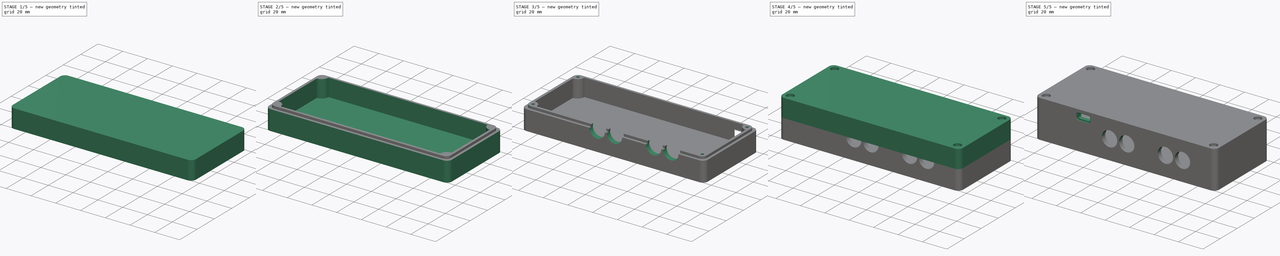
[diagram: build sequence overview — one tinted view per stage of 5, left to right]
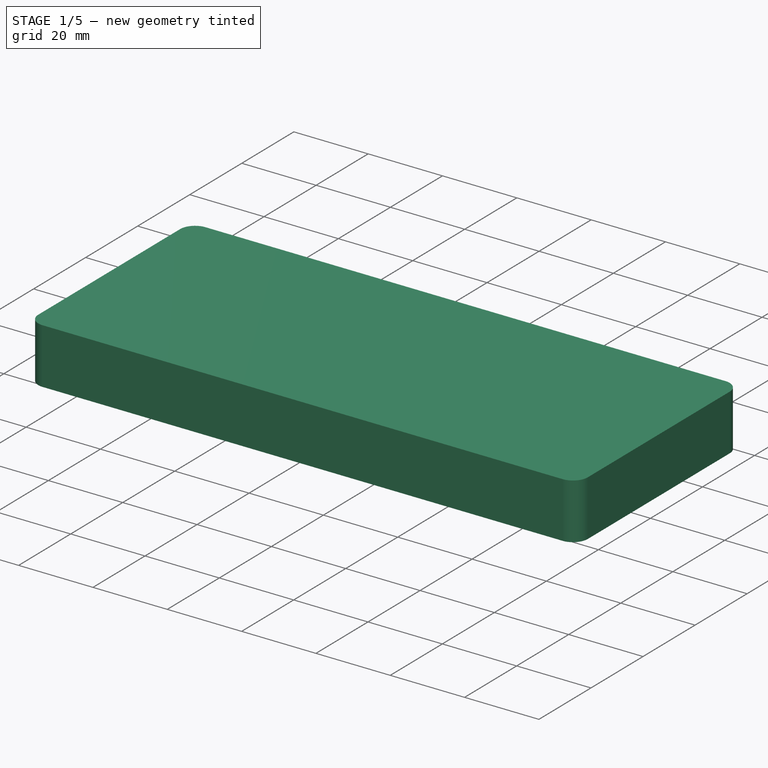
[diagram: stage 1 of 5 — iso view after this stage's code; geometry added in this stage tinted green]
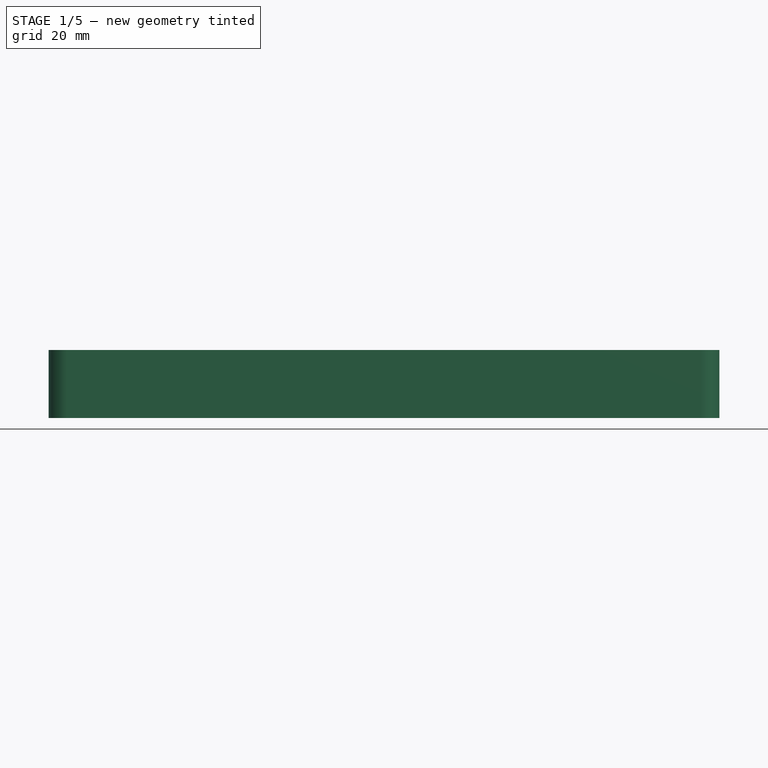
[diagram: stage 1 of 5 — front view after this stage's code; geometry added in this stage tinted green]
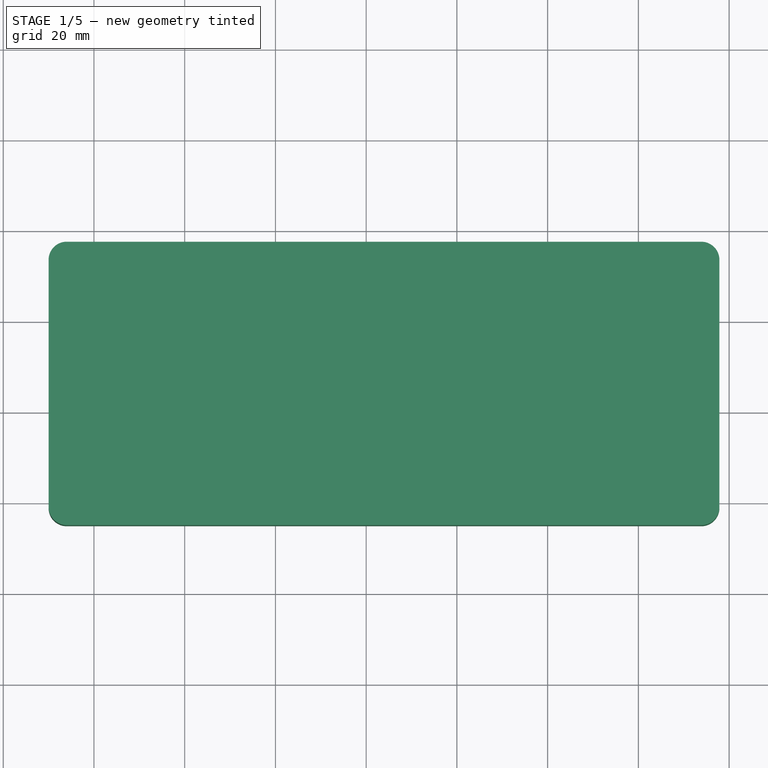
[diagram: stage 1 of 5 — top view after this stage's code; geometry added in this stage tinted green]
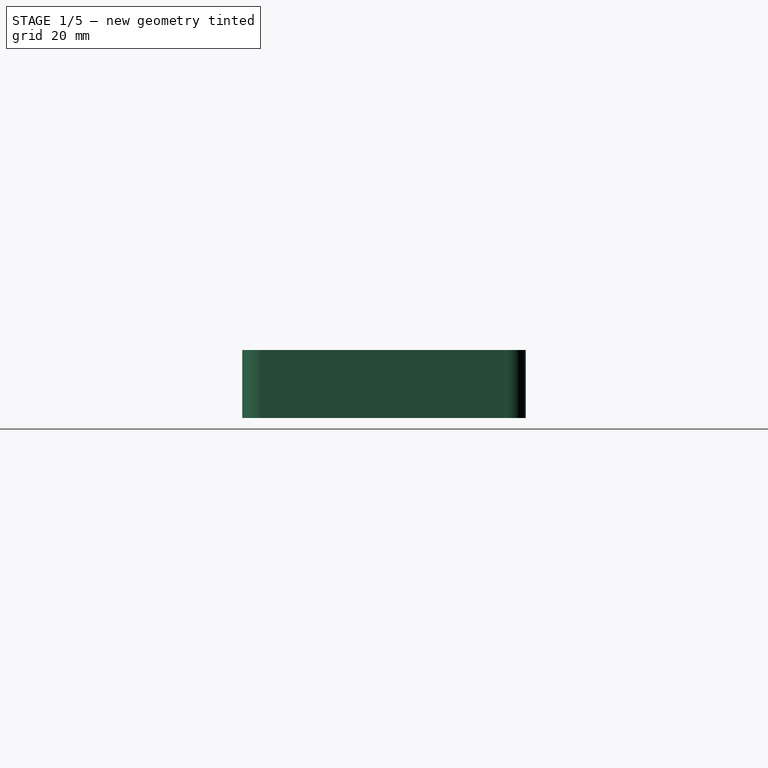
[diagram: stage 1 of 5 — right view after this stage's code; geometry added in this stage tinted green]
FCSTD DOCUMENT  (FreeCAD 1.0R39319 (Git))
Label: enclosure
License: All rights reserved
LicenseURL: http://en.wikipedia.org/wiki/All_rights_reserved
objects: Part::Feature×68, Sketcher::SketchObject×17, PartDesign::Pocket×10, PartDesign::Pad×5, App::Part×4, PartDesign::FeatureBase×2, PartDesign::Hole×2, PartDesign::Body×2
note: 159 computed .brp shape members not serialized (recipe doc carries the construction recipe); baked Part::Feature solids carry a one-line shape summary decoded from their .brp

FEATURE [Part::Feature] Part__Feature061  label="ir-remote_PCB001"
  shape: bbox 127.9 x 53.48 x 1.51 mm, 102 faces (baked)
FEATURE [PartDesign::FeatureBase] BaseFeature
  BaseFeature = -> Part__Feature061
  Suppressed = false
FEATURE [Sketcher::SketchObject] Sketch
  ArcFitTolerance = 1e-06
  AttachmentSupport = -> [XY_Plane004]
  ExternalGeometry = -> [BaseFeature]
  FullyConstrained = true
  MakeInternals = false
  MapMode = 5
  sketch-geometry (12):
    g0: LineSegment StartX=-10 StartY=53.48 StartZ=0 EndX=-10 EndY=-1 EndZ=0
    g1: LineSegment StartX=-6 StartY=-5 StartZ=0 EndX=133.86 EndY=-5 EndZ=0
    g2: LineSegment StartX=137.86 StartY=-1 StartZ=0 EndX=137.86 EndY=53.48 EndZ=0
    g3: LineSegment StartX=133.86 StartY=57.48 StartZ=0 EndX=-6 EndY=57.48 EndZ=0
    g4: ArcOfCircle CenterX=-6 CenterY=53.48 CenterZ=0 NormalX=0 NormalY=0 NormalZ=1 AngleXU=0 Radius=4 StartAngle=1.5708 EndAngle=3.14159
    g5: GeomPoint [constr] X=-10 Y=57.48 Z=0
    g6: ArcOfCircle CenterX=133.86 CenterY=53.48 CenterZ=0 NormalX=0 NormalY=0 NormalZ=1 AngleXU=0 Radius=4 StartAngle=-9e-16 EndAngle=1.5708
    g7: GeomPoint [constr] X=137.86 Y=57.48 Z=0
    g8: ArcOfCircle CenterX=133.86 CenterY=-1 CenterZ=0 NormalX=0 NormalY=0 NormalZ=1 AngleXU=0 Radius=4 StartAngle=4.71239 EndAngle=6.28319
    g9: GeomPoint [constr] X=137.86 Y=-5 Z=0
    g10: ArcOfCircle CenterX=-6 CenterY=-1 CenterZ=0 NormalX=0 NormalY=0 NormalZ=1 AngleXU=0 Radius=4 StartAngle=3.14159 EndAngle=4.71239
    g11: GeomPoint [constr] X=-10 Y=-5 Z=0
  constraints (29):
    c: Vertical(g0)
    c: Vertical(g2)
    c: Horizontal(g1)
    c: Horizontal(g3)
    c: PointOnObject(g5,g3)
    c: PointOnObject(g5,g0)
    c: Tangent(g3,g4) = -1.5708
    c: Tangent(g0,g4) = -1.5708
    c: PointOnObject(g7,g3)
    c: PointOnObject(g7,g2)
    c: Tangent(g3,g6) = -1.5708
    c: Tangent(g2,g6) = -1.5708
    c: PointOnObject(g9,g1)
    c: PointOnObject(g9,g2)
    c: Tangent(g1,g8) = -1.5708
    c: Tangent(g2,g8) = -1.5708
    c: PointOnObject(g11,g0)
    c: PointOnObject(g11,g1)
    c: Tangent(g0,g10) = -1.5708
    c: Tangent(g1,g10) = -1.5708
    c: Radius(g10) = 4
    c: Radius(g4) = 4
    c: Radius(g6) = 4
    c: Radius(g8) = 4
    c: DistanceY(g-3,g3) = 4
    c: Distance(g0,g-2) = 10
    c: DistanceX(g-4,g2) = 10
    c: DistanceY(g1,g-4) = 5
    c: DistanceY(g1,g3) = 62.48
FEATURE [PartDesign::Pad] Pad  label="Base Shape"
  BaseFeature = -> BaseFeature
  Direction = (0,0,1)
  Length = 15
  Length2 = 10
  Profile = -> Sketch
  ReferenceAxis = -> Sketch [N_Axis]
  Suppressed = false
  Type = 0
FEATURE [Sketcher::SketchObject] Sketch001
  ArcFitTolerance = 1e-06
  AttachmentSupport = -> [Pad]
  ExternalGeometry = -> [Pad]
  FullyConstrained = true
  MakeInternals = false
  MapMode = 5
  Placement = pos=(0,0,0) rot=(1,0,0;3.14159rad)
  sketch-geometry (12):
    g0: LineSegment StartX=-8 StartY=-1 StartZ=0 EndX=-8 EndY=-51.73 EndZ=0
    g1: LineSegment StartX=-4 StartY=-55.73 StartZ=0 EndX=131.86 EndY=-55.73 EndZ=0
    g2: LineSegment StartX=135.86 StartY=-51.73 StartZ=0 EndX=135.86 EndY=-1 EndZ=0
    g3: LineSegment StartX=131.86 StartY=3 StartZ=0 EndX=-4 EndY=3 EndZ=0
    g4: ArcOfCircle CenterX=131.86 CenterY=-51.73 CenterZ=0 NormalX=0 NormalY=0 NormalZ=1 AngleXU=0 Radius=4 StartAngle=4.71239 EndAngle=6.28319
    g5: GeomPoint [constr] X=135.86 Y=-55.73 Z=0
    g6: ArcOfCircle CenterX=-4 CenterY=-1 CenterZ=0 NormalX=0 NormalY=0 NormalZ=1 AngleXU=0 Radius=4 StartAngle=1.5708 EndAngle=3.14159
    g7: GeomPoint [constr] X=-8 Y=3 Z=0
    g8: ArcOfCircle CenterX=131.86 CenterY=-1 CenterZ=0 NormalX=0 NormalY=0 NormalZ=1 AngleXU=0 Radius=4 StartAngle=0 EndAngle=1.5708
    g9: GeomPoint [constr] X=135.86 Y=3 Z=0
    g10: ArcOfCircle CenterX=-4 CenterY=-51.73 CenterZ=0 NormalX=0 NormalY=0 NormalZ=1 AngleXU=0 Radius=4 StartAngle=3.14159 EndAngle=4.71239
    g11: GeomPoint [constr] X=-8 Y=-55.73 Z=0
  constraints (28):
    c: Vertical(g0)
    c: Vertical(g2)
    c: Horizontal(g1)
    c: Horizontal(g3)
    c: DistanceY(g-4,g5) = 1.75
    c: DistanceY(g7,g-5) = 2
    c: DistanceX(g-5,g7) = 2
    c: DistanceX(g5,g-6) = 2
    c: PointOnObject(g5,g2)
    c: PointOnObject(g5,g1)
    c: Tangent(g2,g4) = -1.5708
    c: Tangent(g1,g4) = -1.5708
    c: PointOnObject(g7,g0)
    c: PointOnObject(g7,g3)
    c: Tangent(g0,g6) = -1.5708
    c: Tangent(g3,g6) = -1.5708
    c: PointOnObject(g9,g3)
    c: PointOnObject(g9,g2)
    c: Tangent(g3,g8) = -1.5708
    c: Tangent(g2,g8) = -1.5708
    c: PointOnObject(g11,g0)
    c: PointOnObject(g11,g1)
    c: Tangent(g0,g10) = -1.5708
    c: Tangent(g1,g10) = -1.5708
    c: Equal(g-5,g6)
    c: Equal(g10,g6)
    c: Equal(g10,g4)
    c: Equal(g6,g8)
FEATURE [PartDesign::Pocket] Pocket  label="Pocket for mating surface"
  BaseFeature = -> Pad
  Direction = (0,0,1)
  Length = 2
  Length2 = 5
  Profile = -> Sketch001
  ReferenceAxis = -> Sketch001 [N_Axis]
  Suppressed = false
  Type = 0
FEATURE [Part::Feature] Part__Feature066  label="ir-remote_PCB002"
  shape: bbox 127.9 x 53.48 x 1.51 mm, 102 faces (baked)
FEATURE [PartDesign::FeatureBase] BaseFeature001
  BaseFeature = -> Part__Feature066
  Suppressed = false
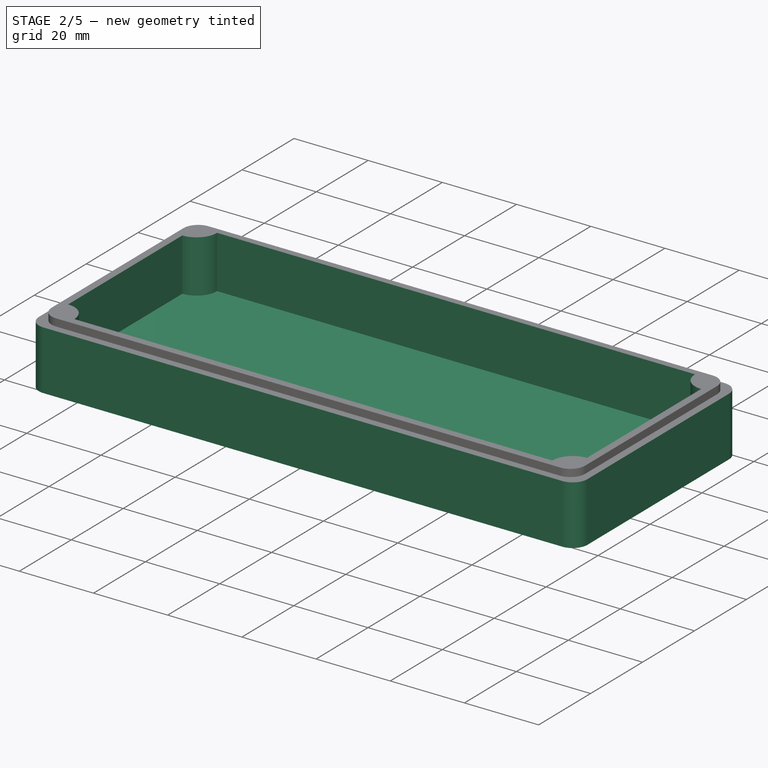
[diagram: stage 2 of 5 — iso view after this stage's code; geometry added in this stage tinted green]
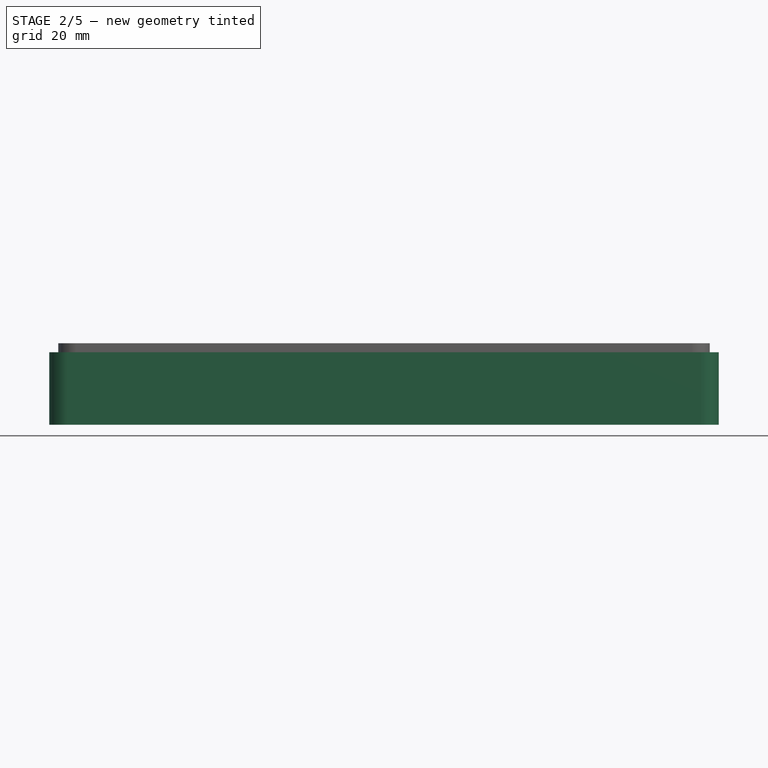
[diagram: stage 2 of 5 — front view after this stage's code; geometry added in this stage tinted green]
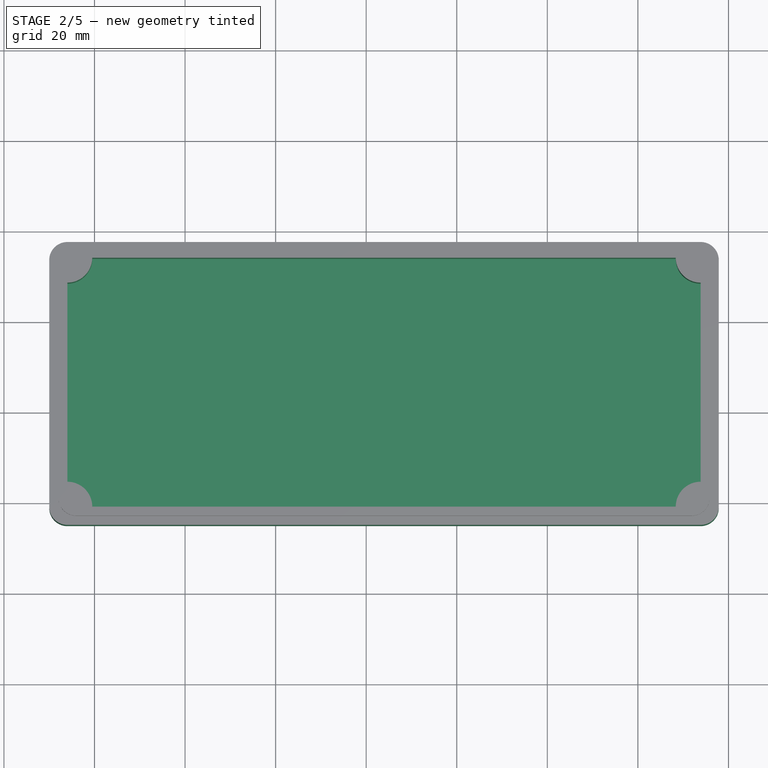
[diagram: stage 2 of 5 — top view after this stage's code; geometry added in this stage tinted green]
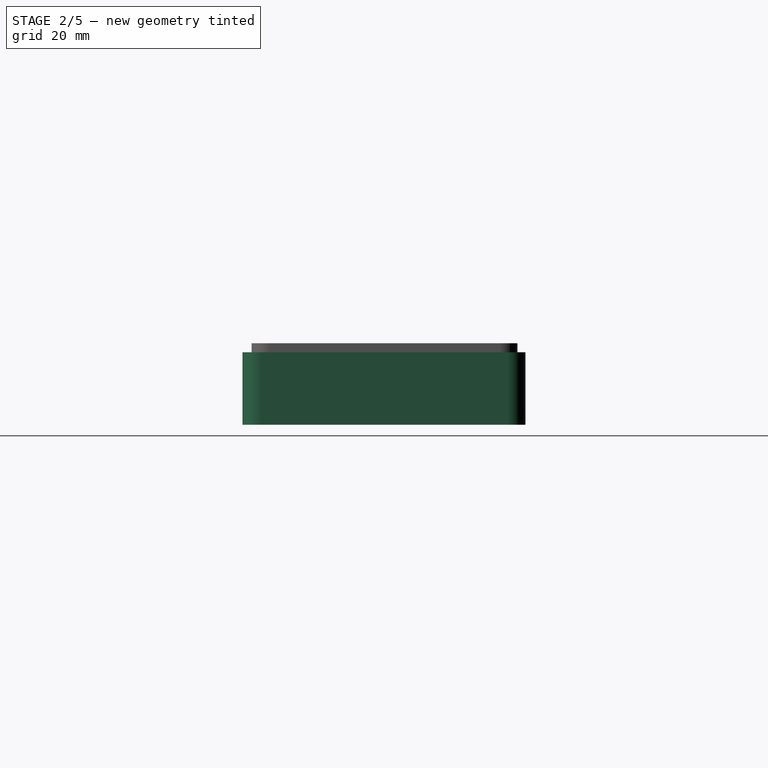
[diagram: stage 2 of 5 — right view after this stage's code; geometry added in this stage tinted green]
FEATURE [PartDesign::Body] Body  label="Bottom Enclosure"
  AllowCompound = false
  BaseFeature = -> Part__Feature061
  Group = -> [BaseFeature,Sketch,Pad,Sketch001,Pocket,Sketch002,Pocket001,Sketch003,Hole,Sketch004,Pocket002,Sketch005,Pad001,Sketch006,Pocket003,Sketch007,Pocket004,Sketch008,Pocket005]
  Origin = -> Origin004
  Tip = -> Pocket005
FEATURE [Sketcher::SketchObject] Sketch010
  ArcFitTolerance = 1e-06
  AttachmentSupport = -> [XY_Plane007]
  FullyConstrained = true
  MakeInternals = false
  MapMode = 5
  sketch-geometry (12):
    g0: LineSegment StartX=-6 StartY=-5 StartZ=0 EndX=133.86 EndY=-5 EndZ=0
    g1: LineSegment StartX=137.86 StartY=-1 StartZ=0 EndX=137.86 EndY=53.48 EndZ=0
    g2: LineSegment StartX=133.86 StartY=57.48 StartZ=0 EndX=-6 EndY=57.48 EndZ=0
    g3: LineSegment StartX=-10 StartY=53.48 StartZ=0 EndX=-10 EndY=-1 EndZ=0
    g4: ArcOfCircle CenterX=-6 CenterY=53.48 CenterZ=0 NormalX=0 NormalY=0 NormalZ=1 AngleXU=0 Radius=4 StartAngle=1.5708 EndAngle=3.14159
    g5: GeomPoint [constr] X=-10 Y=57.48 Z=0
    g6: ArcOfCircle CenterX=-6 CenterY=-1 CenterZ=0 NormalX=0 NormalY=0 NormalZ=1 AngleXU=0 Radius=4 StartAngle=3.14159 EndAngle=4.71239
    g7: GeomPoint [constr] X=-10 Y=-5 Z=0
    g8: ArcOfCircle CenterX=133.86 CenterY=-1 CenterZ=0 NormalX=0 NormalY=0 NormalZ=1 AngleXU=0 Radius=4 StartAngle=4.71239 EndAngle=6.28319
    g9: GeomPoint [constr] X=137.86 Y=-5 Z=0
    g10: ArcOfCircle CenterX=133.86 CenterY=53.48 CenterZ=0 NormalX=0 NormalY=0 NormalZ=1 AngleXU=0 Radius=4 StartAngle=0 EndAngle=1.5708
    g11: GeomPoint [constr] X=137.86 Y=57.48 Z=0
  constraints (28):
    c: Horizontal(g0)
    c: Horizontal(g2)
    c: Vertical(g1)
    c: Vertical(g3)
    c: DistanceX(g7,g-1) = 10
    c: DistanceY(g7,g-1) = 5
    c: DistanceX(g5,g11) = 147.86
    c: DistanceY(g9,g11) = 62.48
    c: PointOnObject(g5,g3)
    c: PointOnObject(g5,g2)
    c: Tangent(g3,g4) = -1.5708
    c: Tangent(g2,g4) = -1.5708
    c: PointOnObject(g7,g3)
    c: PointOnObject(g7,g0)
    c: Tangent(g3,g6) = -1.5708
    c: Tangent(g0,g6) = -1.5708
    c: PointOnObject(g9,g0)
    c: PointOnObject(g9,g1)
    c: Tangent(g0,g8) = -1.5708
    c: Tangent(g1,g8) = -1.5708
    c: PointOnObject(g11,g1)
    c: PointOnObject(g11,g2)
    c: Tangent(g1,g10) = -1.5708
    c: Tangent(g2,g10) = -1.5708
    c: Equal(g10,g4)
    c: Equal(g6,g4)
    c: Equal(g6,g8)
    c: Radius(g4) = 4
FEATURE [PartDesign::Pad] Pad002  label="Base Shape002"
  Direction = (0,0,1)
  Length = 16
  Length2 = 10
  Profile = -> Sketch010
  ReferenceAxis = -> Sketch010 [N_Axis]
  Reversed = true
  Suppressed = false
  Type = 0
FEATURE [Sketcher::SketchObject] Sketch011
  ArcFitTolerance = 1e-06
  AttachmentSupport = -> [XY_Plane008]
  ExternalGeometry = -> [BaseFeature001]
  FullyConstrained = true
  MakeInternals = false
  MapMode = 5
  sketch-geometry (12):
    g0: LineSegment StartX=-10 StartY=53.48 StartZ=0 EndX=-10 EndY=-1 EndZ=0
    g1: LineSegment StartX=-6 StartY=-5 StartZ=0 EndX=133.86 EndY=-5 EndZ=0
    g2: LineSegment StartX=137.86 StartY=-1 StartZ=0 EndX=137.86 EndY=53.48 EndZ=0
    g3: LineSegment StartX=133.86 StartY=57.48 StartZ=0 EndX=-6 EndY=57.48 EndZ=0
    g4: ArcOfCircle CenterX=-6 CenterY=53.48 CenterZ=0 NormalX=0 NormalY=0 NormalZ=1 AngleXU=0 Radius=4 StartAngle=1.5708 EndAngle=3.14159
    g5: GeomPoint [constr] X=-10 Y=57.48 Z=0
    g6: ArcOfCircle CenterX=133.86 CenterY=53.48 CenterZ=0 NormalX=0 NormalY=0 NormalZ=1 AngleXU=0 Radius=4 StartAngle=-9e-16 EndAngle=1.5708
    g7: GeomPoint [constr] X=137.86 Y=57.48 Z=0
    g8: ArcOfCircle CenterX=133.86 CenterY=-1 CenterZ=0 NormalX=0 NormalY=0 NormalZ=1 AngleXU=0 Radius=4 StartAngle=4.71239 EndAngle=6.28319
    g9: GeomPoint [constr] X=137.86 Y=-5 Z=0
    g10: ArcOfCircle CenterX=-6 CenterY=-1 CenterZ=0 NormalX=0 NormalY=0 NormalZ=1 AngleXU=0 Radius=4 StartAngle=3.14159 EndAngle=4.71239
    g11: GeomPoint [constr] X=-10 Y=-5 Z=0
  constraints (29):
    c: Vertical(g0)
    c: Vertical(g2)
    c: Horizontal(g1)
    c: Horizontal(g3)
    c: PointOnObject(g5,g3)
    c: PointOnObject(g5,g0)
    c: Tangent(g3,g4) = -1.5708
    c: Tangent(g0,g4) = -1.5708
    c: PointOnObject(g7,g3)
    c: PointOnObject(g7,g2)
    c: Tangent(g3,g6) = -1.5708
    c: Tangent(g2,g6) = -1.5708
    c: PointOnObject(g9,g1)
    c: PointOnObject(g9,g2)
    c: Tangent(g1,g8) = -1.5708
    c: Tangent(g2,g8) = -1.5708
    c: PointOnObject(g11,g0)
    c: PointOnObject(g11,g1)
    c: Tangent(g0,g10) = -1.5708
    c: Tangent(g1,g10) = -1.5708
    c: Radius(g10) = 4
    c: Radius(g4) = 4
    c: Radius(g6) = 4
    c: Radius(g8) = 4
    c: DistanceY(g-3,g3) = 4
    c: Distance(g0,g-2) = 10
    c: DistanceX(g-4,g2) = 10
    c: DistanceY(g1,g-4) = 5
    c: DistanceY(g1,g3) = 62.48
FEATURE [PartDesign::Pad] Pad003  label="Base Shape001"
  BaseFeature = -> BaseFeature001
  Direction = (0,0,1)
  Length = 15
  Length2 = 10
  Profile = -> Sketch011
  ReferenceAxis = -> Sketch011 [N_Axis]
  Suppressed = false
  Type = 0
FEATURE [Sketcher::SketchObject] Sketch012
  ArcFitTolerance = 1e-06
  AttachmentSupport = -> [Pad003]
  ExternalGeometry = -> [Pad003]
  FullyConstrained = true
  MakeInternals = false
  MapMode = 5
  Placement = pos=(0,0,0) rot=(1,0,0;3.14159rad)
  sketch-geometry (12):
    g0: LineSegment StartX=-8 StartY=-1 StartZ=0 EndX=-8 EndY=-51.73 EndZ=0
    g1: LineSegment StartX=-4 StartY=-55.73 StartZ=0 EndX=131.86 EndY=-55.73 EndZ=0
    g2: LineSegment StartX=135.86 StartY=-51.73 StartZ=0 EndX=135.86 EndY=-1 EndZ=0
    g3: LineSegment StartX=131.86 StartY=3 StartZ=0 EndX=-4 EndY=3 EndZ=0
    g4: ArcOfCircle CenterX=131.86 CenterY=-51.73 CenterZ=0 NormalX=0 NormalY=0 NormalZ=1 AngleXU=0 Radius=4 StartAngle=4.71239 EndAngle=6.28319
    g5: GeomPoint [constr] X=135.86 Y=-55.73 Z=0
    g6: ArcOfCircle CenterX=-4 CenterY=-1 CenterZ=0 NormalX=0 NormalY=0 NormalZ=1 AngleXU=0 Radius=4 StartAngle=1.5708 EndAngle=3.14159
    g7: GeomPoint [constr] X=-8 Y=3 Z=0
    g8: ArcOfCircle CenterX=131.86 CenterY=-1 CenterZ=0 NormalX=0 NormalY=0 NormalZ=1 AngleXU=0 Radius=4 StartAngle=0 EndAngle=1.5708
    g9: GeomPoint [constr] X=135.86 Y=3 Z=0
    g10: ArcOfCircle CenterX=-4 CenterY=-51.73 CenterZ=0 NormalX=0 NormalY=0 NormalZ=1 AngleXU=0 Radius=4 StartAngle=3.14159 EndAngle=4.71239
    g11: GeomPoint [constr] X=-8 Y=-55.73 Z=0
  constraints (28):
    c: Vertical(g0)
    c: Vertical(g2)
    c: Horizontal(g1)
    c: Horizontal(g3)
    c: DistanceY(g-4,g5) = 1.75
    c: DistanceY(g7,g-5) = 2
    c: DistanceX(g-5,g7) = 2
    c: DistanceX(g5,g-6) = 2
    c: PointOnObject(g5,g2)
    c: PointOnObject(g5,g1)
    c: Tangent(g2,g4) = -1.5708
    c: Tangent(g1,g4) = -1.5708
    c: PointOnObject(g7,g0)
    c: PointOnObject(g7,g3)
    c: Tangent(g0,g6) = -1.5708
    c: Tangent(g3,g6) = -1.5708
    c: PointOnObject(g9,g3)
    c: PointOnObject(g9,g2)
    c: Tangent(g3,g8) = -1.5708
    c: Tangent(g2,g8) = -1.5708
    c: PointOnObject(g11,g0)
    c: PointOnObject(g11,g1)
    c: Tangent(g0,g10) = -1.5708
    c: Tangent(g1,g10) = -1.5708
    c: Equal(g-5,g6)
    c: Equal(g10,g6)
    c: Equal(g10,g4)
    c: Equal(g6,g8)
FEATURE [PartDesign::Pad] Pad004  label="Mating Surface (positive)"
  BaseFeature = -> Pad002
  Direction = (0,0,-1)
  Length = 2
  Length2 = 10
  Profile = -> Sketch012
  ReferenceAxis = -> Sketch012 [N_Axis]
  Reversed = true
  Suppressed = false
  Type = 0
FEATURE [Sketcher::SketchObject] Sketch013
  ArcFitTolerance = 1e-06
  AttachmentSupport = -> [Pocket]
  ExternalGeometry = -> [Pocket]
  FullyConstrained = true
  MakeInternals = false
  MapMode = 5
  Placement = pos=(0,0,2) rot=(1,0,0;3.14159rad)
  sketch-geometry (8):
    g0: ArcOfCircle CenterX=-6 CenterY=1 CenterZ=0 NormalX=0 NormalY=0 NormalZ=1 AngleXU=0 Radius=5.5 StartAngle=4.71239 EndAngle=6.28319
    g1: ArcOfCircle CenterX=133.86 CenterY=1 CenterZ=0 NormalX=0 NormalY=0 NormalZ=1 AngleXU=0 Radius=5.5 StartAngle=3.14159 EndAngle=4.71239
    g2: ArcOfCircle CenterX=133.86 CenterY=-53.98 CenterZ=0 NormalX=0 NormalY=0 NormalZ=1 AngleXU=0 Radius=5.5 StartAngle=1.5708 EndAngle=3.14159
    g3: ArcOfCircle CenterX=-6 CenterY=-53.98 CenterZ=0 NormalX=0 NormalY=0 NormalZ=1 AngleXU=0 Radius=5.5 StartAngle=3.26793e-07 EndAngle=1.5708
    g4: LineSegment StartX=-0.5 StartY=-53.98 StartZ=0 EndX=128.36 EndY=-53.98 EndZ=0
    g5: LineSegment StartX=133.86 StartY=-48.48 StartZ=0 EndX=133.86 EndY=-4.5 EndZ=0
    g6: LineSegment StartX=128.36 StartY=1 StartZ=0 EndX=-0.5 EndY=1 EndZ=0
    g7: LineSegment StartX=-6 StartY=-4.5 StartZ=0 EndX=-6 EndY=-48.48 EndZ=0
  constraints (28):
    c: Angle(g0) = 1.5708
    c: DistanceY(g0,g-3) = 2
    c: DistanceX(g-5,g0) = 2
    c: Horizontal(g0,g0)
    c: Radius(g0) = 5.5
    c: Angle(g1) = 1.5708
    c: DistanceX(g1,g-4) = 2
    c: Horizontal(g1,g0)
    c: Horizontal(g1,g1)
    c: Equal(g0,g1)
    c: Angle(g2) = 1.5708
    c: Vertical(g2,g2)
    c: DistanceY(g-6,g2) = 1.75
    c: Equal(g1,g2)
    c: Vertical(g2,g1)
    c: Angle(g3) = 1.5708
    c: Vertical(g3,g0)
    c: Horizontal(g3,g2)
    c: Equal(g3,g2)
    c: Vertical(g3,g3)
    c: Coincident(g4,g3)
    c: Coincident(g4,g2)
    c: Coincident(g5,g2)
    c: Coincident(g5,g1)
    c: Coincident(g6,g1)
    c: Coincident(g6,g0)
    c: Coincident(g7,g0)
    c: Coincident(g7,g3)
FEATURE [PartDesign::Pocket] Pocket007  label="Interior"
  BaseFeature = -> Pad004
  Direction = (0,0,1)
  Length = 14.2
  Length2 = 5
  Profile = -> Sketch013
  ReferenceAxis = -> Sketch013 [N_Axis]
  Reversed = true
  Suppressed = false
  Type = 0
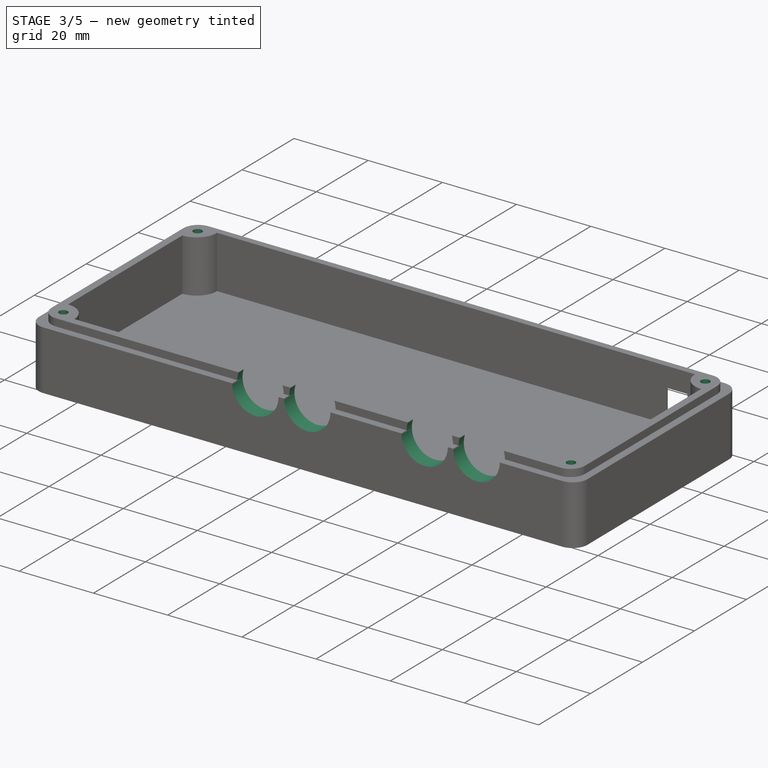
[diagram: stage 3 of 5 — iso view after this stage's code; geometry added in this stage tinted green]
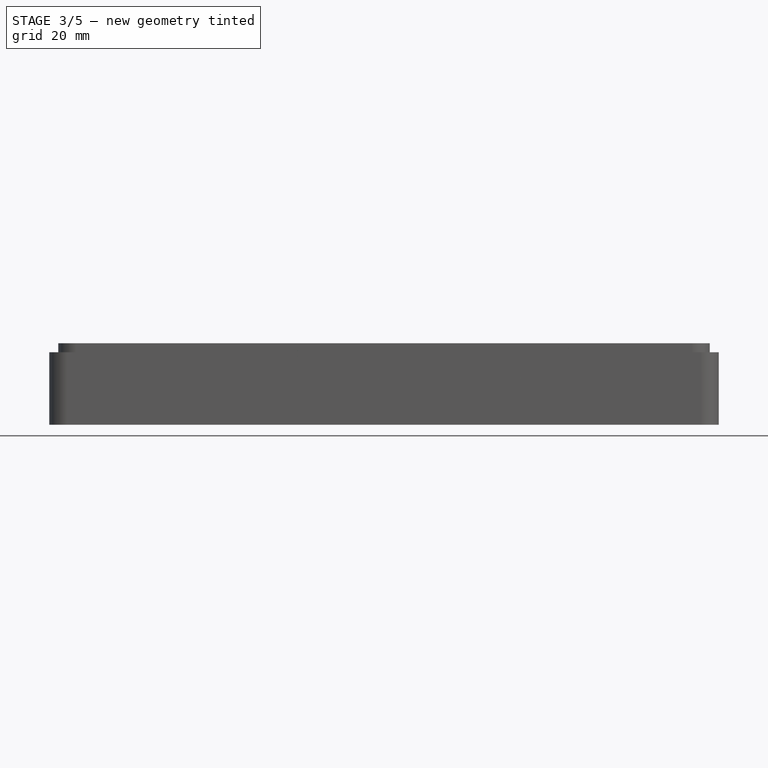
[diagram: stage 3 of 5 — front view after this stage's code; geometry added in this stage tinted green]
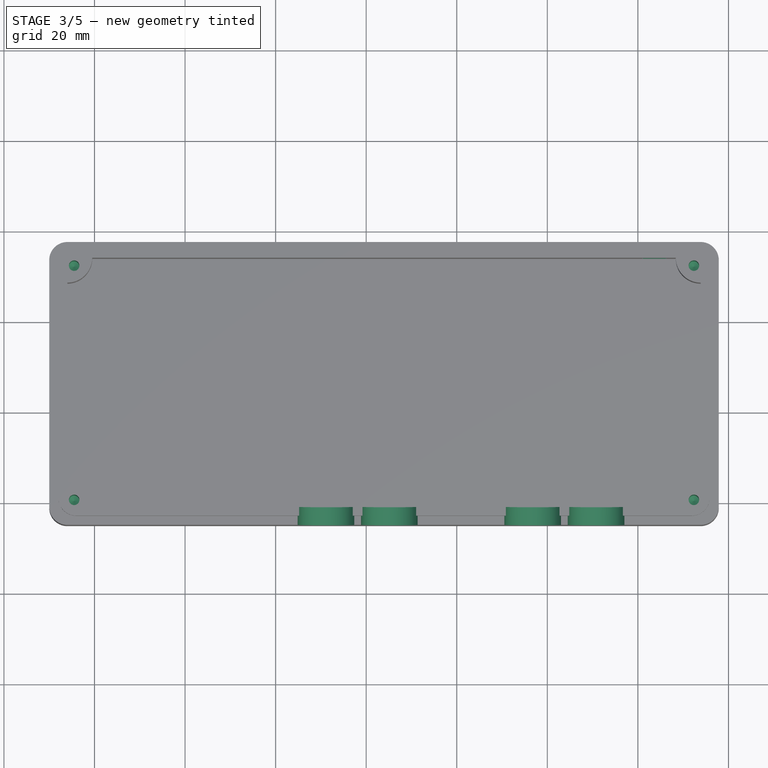
[diagram: stage 3 of 5 — top view after this stage's code; geometry added in this stage tinted green]
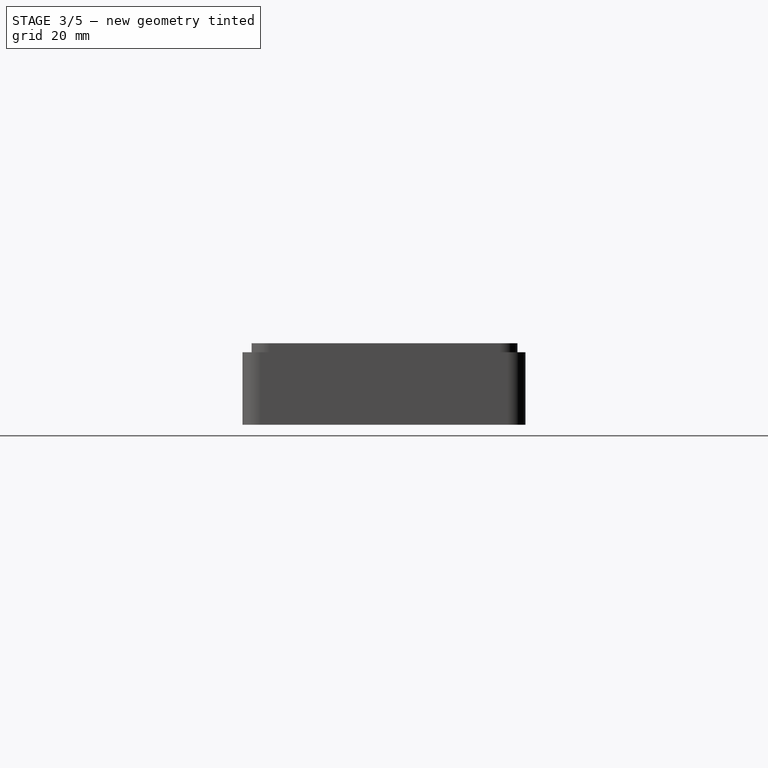
[diagram: stage 3 of 5 — right view after this stage's code; geometry added in this stage tinted green]
FEATURE [Sketcher::SketchObject] Sketch014
  ArcFitTolerance = 1e-06
  AttachmentSupport = -> [Pocket007]
  ExternalGeometry = -> [Pocket007]
  FullyConstrained = true
  MakeInternals = false
  MapMode = 5
  Placement = pos=(0,0,2) rot=(0,0,1;0rad)
  sketch-geometry (4):
    g0: Circle CenterX=-4.5 CenterY=0.5 CenterZ=0 NormalX=0 NormalY=0 NormalZ=1 AngleXU=0 Radius=1.16
    g1: Circle CenterX=132.36 CenterY=52.23 CenterZ=0 NormalX=0 NormalY=0 NormalZ=1 AngleXU=0 Radius=1.16
    g2: Circle CenterX=132.36 CenterY=0.5 CenterZ=0 NormalX=0 NormalY=0 NormalZ=1 AngleXU=0 Radius=1.16
    g3: Circle CenterX=-4.5 CenterY=52.23 CenterZ=0 NormalX=0 NormalY=0 NormalZ=1 AngleXU=0 Radius=1.16
  constraints (12):
    c: Diameter(g0) = 2.32
    c: DistanceX(g-3,g0) = 3.5
    c: DistanceY(g-4,g0) = 3.5
    c: Equal(g0,g3)
    c: Equal(g3,g1)
    c: Equal(g1,g2)
    c: Vertical(g1,g2)
    c: Horizontal(g1,g3)
    c: Vertical(g3,g0)
    c: DistanceY(g3,g-5) = 3.5
    c: DistanceX(g1,g-6) = 3.5
    c: Horizontal(g0,g2)
FEATURE [PartDesign::Hole] Hole001  label="Corner screw holes001"
  BaseFeature = -> Pocket007
  CustomThreadClearance = 0
  Depth = 12
  DepthType = 0
  Diameter = 2.32
  DrillForDepth = false
  DrillPoint = 1
  DrillPointAngle = 118
  HoleCutCountersinkAngle = 90
  HoleCutCustomValues = false
  HoleCutDepth = 0
  HoleCutDiameter = 6.1
  HoleCutType = 0
  ModelThread = false
  Profile = -> Sketch014
  Suppressed = false
  Tapered = false
  TaperedAngle = 90
  ThreadClass = 0
  ThreadDepth = 12
  ThreadDepthType = 0
  ThreadDirection = 0
  ThreadFit = 0
  ThreadSize = 0
  ThreadType = 0
  Threaded = false
  UseCustomThreadClearance = false
FEATURE [Sketcher::SketchObject] Sketch015
  ArcFitTolerance = 1e-06
  AttachmentSupport = -> [Hole001]
  ExternalGeometry = -> [Hole001]
  FullyConstrained = true
  MakeInternals = false
  MapMode = 5
  Placement = pos=(0,-5,0) rot=(1,0,0;1.5708rad)
  sketch-geometry (6):
    g0: GeomPoint [constr] X=-4.5 Y=-10 Z=0
    g1: Circle CenterX=51.11 CenterY=0 CenterZ=0 NormalX=0 NormalY=0 NormalZ=1 AngleXU=0 Radius=6.25
    g2: Circle CenterX=65.11 CenterY=0 CenterZ=0 NormalX=0 NormalY=0 NormalZ=1 AngleXU=0 Radius=6.25
    g3: Circle CenterX=96.76 CenterY=0 CenterZ=0 NormalX=0 NormalY=0 NormalZ=1 AngleXU=0 Radius=6.25
    g4: Circle CenterX=110.76 CenterY=0 CenterZ=0 NormalX=0 NormalY=0 NormalZ=1 AngleXU=0 Radius=6.25
    g5: GeomPoint [constr] X=132.36 Y=-10 Z=0
  constraints (14):
    c: Symmetric(g-4,g-4,g0)
    c: PointOnObject(g1,g-1)
    c: PointOnObject(g2,g-1)
    c: PointOnObject(g3,g-1)
    c: PointOnObject(g4,g-1)
    c: Diameter(g4) = 12.5
    c: Equal(g4,g3)
    c: Equal(g2,g1)
    c: Symmetric(g-5,g-5,g5)
    c: DistanceX(g4,g5) = 21.6
    c: DistanceX(g3,g4) = 14
    c: DistanceX(g1,g2) = 14
    c: DistanceX(g2,g4) = 45.65
    c: Equal(g3,g2)
FEATURE [PartDesign::Pocket] Pocket008  label="Jack cutout"
  BaseFeature = -> Hole001
  Direction = (0,1,-2e-16)
  Length = 4
  Length2 = 5
  Profile = -> Sketch015
  ReferenceAxis = -> Sketch015 [N_Axis]
  Suppressed = false
  Type = 0
FEATURE [Sketcher::SketchObject] Sketch016
  ArcFitTolerance = 1e-06
  AttachmentSupport = -> [Pocket008]
  FullyConstrained = false
  MakeInternals = false
  MapMode = 5
  Placement = pos=(0,53.98,0) rot=(1,0,0;1.5708rad)
  sketch-geometry (12):
    g0: LineSegment StartX=120.874 StartY=-3.59174 StartZ=0 EndX=120.874 EndY=-10.5917 EndZ=0
    g1: LineSegment StartX=121.124 StartY=-10.8417 StartZ=0 EndX=126.124 EndY=-10.8417 EndZ=0
    g2: LineSegment StartX=126.374 StartY=-10.5917 StartZ=0 EndX=126.374 EndY=-3.59174 EndZ=0
    g3: LineSegment StartX=126.124 StartY=-3.34174 StartZ=0 EndX=121.124 EndY=-3.34174 EndZ=0
    g4: ArcOfCircle CenterX=121.124 CenterY=-3.59174 CenterZ=0 NormalX=0 NormalY=0 NormalZ=1 AngleXU=0 Radius=0.25 StartAngle=1.5708 EndAngle=3.14159
    g5: GeomPoint [constr] X=120.874 Y=-3.34174 Z=0
    g6: ArcOfCircle CenterX=126.124 CenterY=-3.59174 CenterZ=0 NormalX=0 NormalY=0 NormalZ=1 AngleXU=0 Radius=0.25 StartAngle=0 EndAngle=1.5708
    g7: GeomPoint [constr] X=126.374 Y=-3.34174 Z=0
    g8: ArcOfCircle CenterX=126.124 CenterY=-10.5917 CenterZ=0 NormalX=0 NormalY=0 NormalZ=1 AngleXU=0 Radius=0.25 StartAngle=4.71239 EndAngle=6.28319
    g9: GeomPoint [constr] X=126.374 Y=-10.8417 Z=0
    g10: ArcOfCircle CenterX=121.124 CenterY=-10.5917 CenterZ=0 NormalX=0 NormalY=0 NormalZ=1 AngleXU=0 Radius=0.25 StartAngle=3.14159 EndAngle=4.71239
    g11: GeomPoint [constr] X=120.874 Y=-10.8417 Z=0
  constraints (26):
    c: Vertical(g0)
    c: Vertical(g2)
    c: Horizontal(g1)
    c: Horizontal(g3)
    c: DistanceX(g5,g7) = 5.5
    c: DistanceY(g11,g5) = 7.5
    c: PointOnObject(g5,g0)
    c: PointOnObject(g5,g3)
    c: Tangent(g0,g4) = -1.5708
    c: Tangent(g3,g4) = -1.5708
    c: PointOnObject(g7,g3)
    c: PointOnObject(g7,g2)
    c: Tangent(g3,g6) = -1.5708
    c: Tangent(g2,g6) = -1.5708
    c: PointOnObject(g9,g2)
    c: PointOnObject(g9,g1)
    c: Tangent(g2,g8) = -1.5708
    c: Tangent(g1,g8) = -1.5708
    c: PointOnObject(g11,g1)
    c: PointOnObject(g11,g0)
    c: Tangent(g1,g10) = -1.5708
    c: Tangent(g0,g10) = -1.5708
    c: Equal(g4,g6)
    c: Equal(g6,g8)
    c: Equal(g8,g10)
    c: Radius(g4) = 0.25
FEATURE [PartDesign::Pocket] Pocket009  label="IR cutout"
  BaseFeature = -> Pocket008
  Direction = (0,1,-2e-16)
  Length = 5
  Length2 = 5
  Profile = -> Sketch016
  ReferenceAxis = -> Sketch016 [N_Axis]
  Suppressed = false
  TaperAngle = 34
  Type = 0
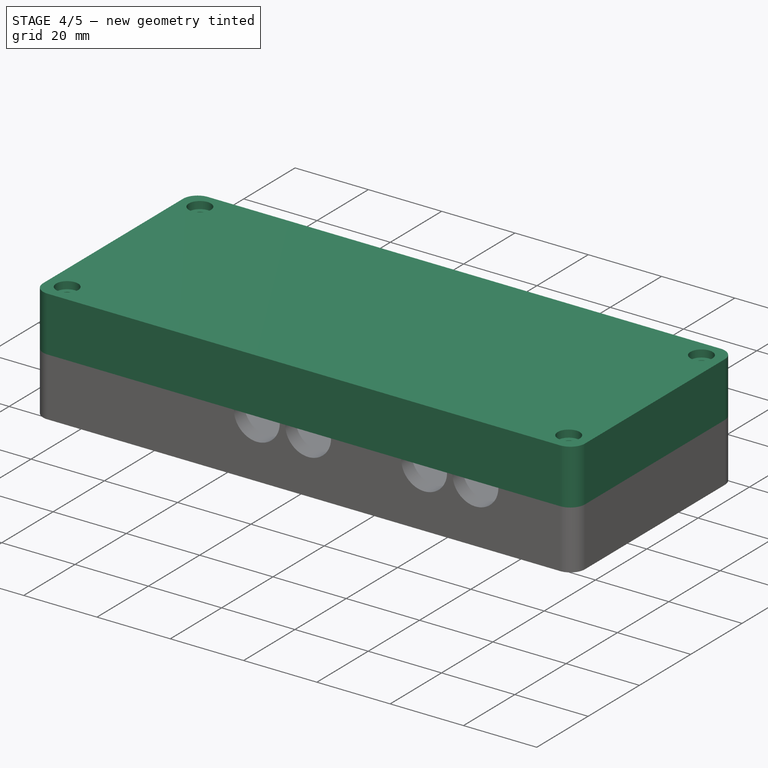
[diagram: stage 4 of 5 — iso view after this stage's code; geometry added in this stage tinted green]
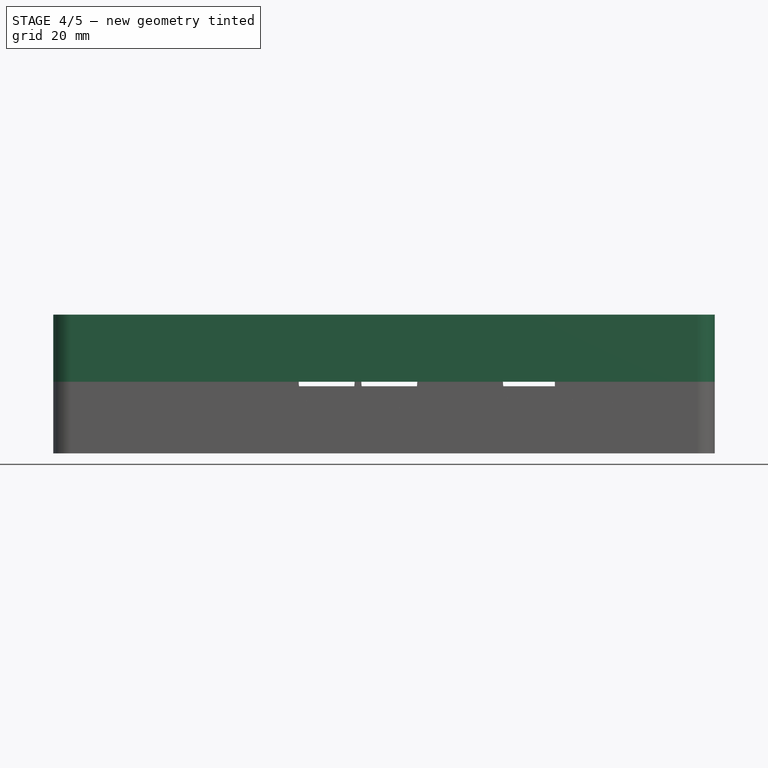
[diagram: stage 4 of 5 — front view after this stage's code; geometry added in this stage tinted green]
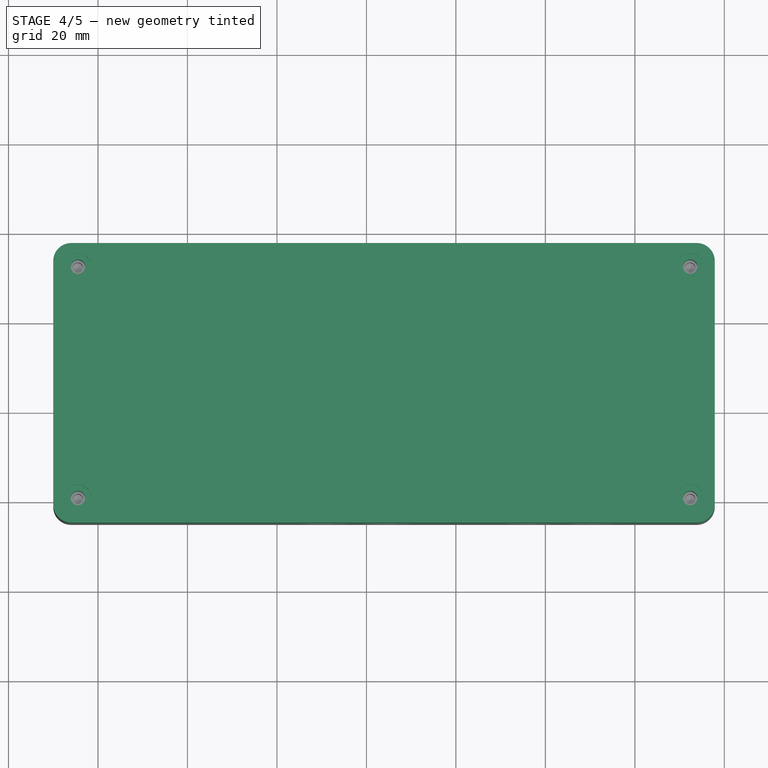
[diagram: stage 4 of 5 — top view after this stage's code; geometry added in this stage tinted green]
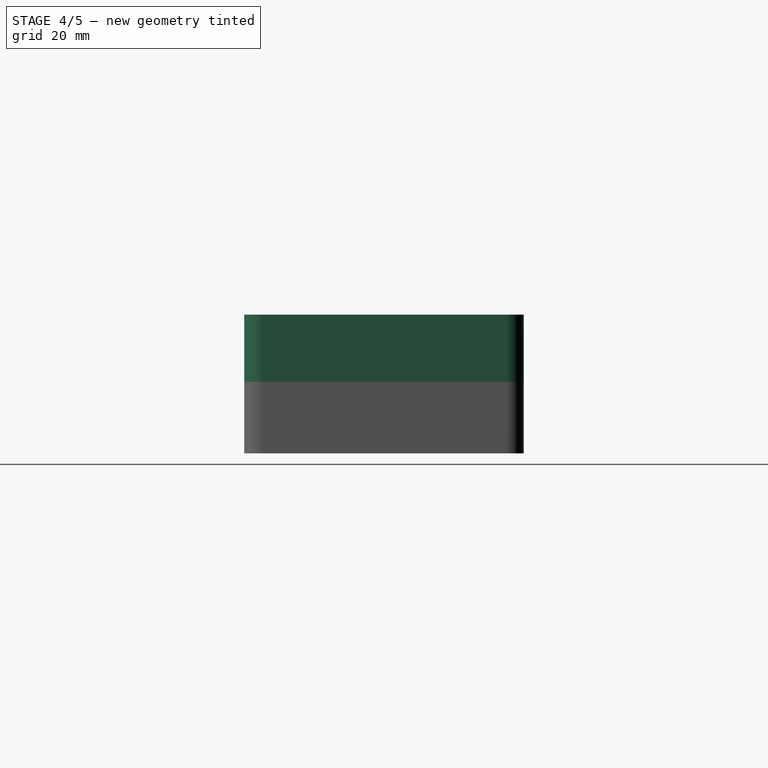
[diagram: stage 4 of 5 — right view after this stage's code; geometry added in this stage tinted green]
FEATURE [Sketcher::SketchObject] Sketch002
  ArcFitTolerance = 1e-06
  AttachmentSupport = -> [Pocket]
  ExternalGeometry = -> [Pocket]
  FullyConstrained = true
  MakeInternals = false
  MapMode = 5
  Placement = pos=(0,0,2) rot=(1,0,0;3.14159rad)
  sketch-geometry (8):
    g0: ArcOfCircle CenterX=-6 CenterY=1 CenterZ=0 NormalX=0 NormalY=0 NormalZ=1 AngleXU=0 Radius=6 StartAngle=4.71239 EndAngle=6.28319
    g1: ArcOfCircle CenterX=133.86 CenterY=1 CenterZ=0 NormalX=0 NormalY=0 NormalZ=1 AngleXU=0 Radius=6 StartAngle=3.14159 EndAngle=4.71239
    g2: ArcOfCircle CenterX=133.86 CenterY=-53.98 CenterZ=0 NormalX=0 NormalY=0 NormalZ=1 AngleXU=0 Radius=6 StartAngle=1.5708 EndAngle=3.14159
    g3: ArcOfCircle CenterX=-6 CenterY=-53.98 CenterZ=0 NormalX=0 NormalY=0 NormalZ=1 AngleXU=0 Radius=6 StartAngle=3.26789e-07 EndAngle=1.5708
    g4: LineSegment StartX=-3.206e-13 StartY=-53.98 StartZ=0 EndX=127.86 EndY=-53.98 EndZ=0
    g5: LineSegment StartX=133.86 StartY=-47.98 StartZ=0 EndX=133.86 EndY=-5 EndZ=0
    g6: LineSegment StartX=127.86 StartY=1 StartZ=0 EndX=0 EndY=1 EndZ=0
    g7: LineSegment StartX=-6 StartY=-5 StartZ=0 EndX=-6 EndY=-47.98 EndZ=0
  constraints (28):
    c: Angle(g0) = 1.5708
    c: DistanceY(g0,g-3) = 2
    c: DistanceX(g-5,g0) = 2
    c: Horizontal(g0,g0)
    c: Radius(g0) = 6
    c: Angle(g1) = 1.5708
    c: DistanceX(g1,g-4) = 2
    c: Horizontal(g1,g0)
    c: Horizontal(g1,g1)
    c: Equal(g0,g1)
    c: Angle(g2) = 1.5708
    c: Vertical(g2,g2)
    c: DistanceY(g-6,g2) = 1.75
    c: Equal(g1,g2)
    c: Vertical(g2,g1)
    c: Angle(g3) = 1.5708
    c: Vertical(g3,g0)
    c: Horizontal(g3,g2)
    c: Equal(g3,g2)
    c: Vertical(g3,g3)
    c: Coincident(g4,g3)
    c: Coincident(g4,g2)
    c: Coincident(g5,g2)
    c: Coincident(g5,g1)
    c: Coincident(g6,g1)
    c: Coincident(g6,g0)
    c: Coincident(g7,g0)
    c: Coincident(g7,g3)
FEATURE [PartDesign::Pocket] Pocket001  label="Pocket for interior"
  BaseFeature = -> Pocket
  Direction = (0,0,1)
  Length = 11
  Length2 = 5
  Profile = -> Sketch002
  ReferenceAxis = -> Sketch002 [N_Axis]
  Suppressed = false
  Type = 0
FEATURE [Sketcher::SketchObject] Sketch003
  ArcFitTolerance = 1e-06
  AttachmentSupport = -> [Pocket001]
  ExternalGeometry = -> [Pocket001]
  FullyConstrained = true
  MakeInternals = false
  MapMode = 5
  Placement = pos=(0,0,2) rot=(1,0,0;3.14159rad)
  sketch-geometry (4):
    g0: Circle CenterX=-4.5 CenterY=-0.5 CenterZ=0 NormalX=0 NormalY=0 NormalZ=1 AngleXU=0 Radius=1.16
    g1: Circle CenterX=132.36 CenterY=-0.5 CenterZ=0 NormalX=0 NormalY=0 NormalZ=1 AngleXU=0 Radius=1.16
    g2: Circle CenterX=132.36 CenterY=-52.23 CenterZ=0 NormalX=0 NormalY=0 NormalZ=1 AngleXU=0 Radius=1.16
    g3: Circle CenterX=-4.5 CenterY=-52.23 CenterZ=0 NormalX=0 NormalY=0 NormalZ=1 AngleXU=0 Radius=1.16
  constraints (12):
    c: Diameter(g0) = 2.32
    c: DistanceX(g-4,g0) = 3.5
    c: DistanceY(g0,g-3) = 3.5
    c: Equal(g0,g1)
    c: Horizontal(g0,g1)
    c: Distance(g1,g-5) = 3.5
    c: Equal(g0,g3)
    c: Equal(g1,g2)
    c: Vertical(g2,g1)
    c: Horizontal(g2,g3)
    c: Vertical(g3,g0)
    c: DistanceY(g-6,g3) = 3.5
FEATURE [PartDesign::Hole] Hole  label="Corner screw holes"
  BaseFeature = -> Pocket001
  CustomThreadClearance = 0
  Depth = 325.661
  DepthType = 1
  Diameter = 3.2
  DrillForDepth = false
  DrillPoint = 1
  DrillPointAngle = 118
  HoleCutCountersinkAngle = 90
  HoleCutCustomValues = false
  HoleCutDepth = 0
  HoleCutDiameter = 6.1
  HoleCutType = 0
  ModelThread = false
  Profile = -> Sketch003
  Suppressed = false
  Tapered = false
  TaperedAngle = 90
  ThreadClass = 0
  ThreadDepth = 325.661
  ThreadDepthType = 0
  ThreadDirection = 0
  ThreadFit = 0
  ThreadSize = 0
  ThreadType = 0
  Threaded = false
  UseCustomThreadClearance = false
FEATURE [Sketcher::SketchObject] Sketch004
  ArcFitTolerance = 1e-06
  AttachmentSupport = -> [Hole]
  ExternalGeometry = -> [Hole]
  FullyConstrained = true
  MakeInternals = false
  MapMode = 5
  Placement = pos=(0,0,15) rot=(0,0,1;0rad)
  sketch-geometry (4):
    g0: Circle CenterX=-4.5 CenterY=52.23 CenterZ=0 NormalX=0 NormalY=0 NormalZ=1 AngleXU=0 Radius=3
    g1: Circle CenterX=-4.5 CenterY=0.5 CenterZ=0 NormalX=0 NormalY=0 NormalZ=1 AngleXU=0 Radius=3
    g2: Circle CenterX=132.36 CenterY=52.23 CenterZ=0 NormalX=0 NormalY=0 NormalZ=1 AngleXU=0 Radius=3
    g3: Circle CenterX=132.36 CenterY=0.5 CenterZ=0 NormalX=0 NormalY=0 NormalZ=1 AngleXU=0 Radius=3
  constraints (8):
    c: Coincident(g0,g-3)
    c: Diameter(g0) = 6
    c: Coincident(g1,g-4)
    c: Coincident(g2,g-5)
    c: Coincident(g3,g-6)
    c: Equal(g2,g0)
    c: Equal(g0,g1)
    c: Equal(g0,g3)
FEATURE [PartDesign::Pocket] Pocket002  label="Corner screw counter-bore"
  BaseFeature = -> Hole
  Direction = (0,0,-1)
  Length = 2
  Length2 = 5
  Profile = -> Sketch004
  ReferenceAxis = -> Sketch004 [N_Axis]
  Suppressed = false
  Type = 0
FEATURE [Part::Feature] Part__Feature  label="C_0603_1608Metric"
  Placement = pos=(60.936,44.7975,1.595) rot=(0,0,1;1.5708rad)
  shape: bbox 0.8 x 1.6 x 0.8 mm, 28 faces (baked)
FEATURE [Part::Feature] Part__Feature135  label="C_0603_1608Metric066"
  Placement = pos=(71.5,16.75,1.595) rot=(0,0,-1;1.5708rad)
  shape: bbox 0.8 x 1.6 x 0.8 mm, 28 faces (baked)
FEATURE [Part::Feature] Part__Feature136  label="C_1206_3216Metric"
  Placement = pos=(81.21,47.3825,1.595) rot=(0,0,-1;1.5708rad)
  shape: bbox 1.6 x 3.2 x 1.6 mm, 28 faces (baked)
FEATURE [Part::Feature] Part__Feature137  label="C_0603_1608Metric067"
  Placement = pos=(78.93,16.5,1.595) rot=(0,0,1;0rad)
  shape: bbox 1.6 x 0.8 x 0.8 mm, 28 faces (baked)
FEATURE [Part::Feature] Part__Feature138  label="C_0603_1608Metric068"
  Placement = pos=(60.12,16.18,1.595) rot=(0,0,-1;1.5708rad)
  shape: bbox 0.8 x 1.6 x 0.8 mm, 28 faces (baked)
FEATURE [Part::Feature] Part__Feature139  label="C_0603_1608Metric069"
  Placement = pos=(49.37,33.09,1.595) rot=(0,0,1;1.5708rad)
  shape: bbox 0.8 x 1.6 x 0.8 mm, 28 faces (baked)
FEATURE [Part::Feature] Part__Feature140  label="C_0603_1608Metric070"
  Placement = pos=(49.27,42.98,1.595) rot=(0,0,1;0rad)
  shape: bbox 1.6 x 0.8 x 0.8 mm, 28 faces (baked)
FEATURE [Part::Feature] Part__Feature141  label="C_0603_1608Metric071"
  Placement = pos=(93.68,25.22,1.595) rot=(0,0,1;1.5708rad)
  shape: bbox 0.8 x 1.6 x 0.8 mm, 28 faces (baked)
FEATURE [Part::Feature] Part__Feature142  label="C_0603_1608Metric072"
  Placement = pos=(117.5,49.51,1.595) rot=(0,0,-1;1.5708rad)
  shape: bbox 0.8 x 1.6 x 0.8 mm, 28 faces (baked)
FEATURE [Part::Feature] Part__Feature143  label="SOT-23-6"
  Placement = pos=(29.8775,10.41,1.595) rot=(0,0,1;1.5708rad)
  shape: bbox 2.9 x 2.8 x 1.55 mm, 117 faces (baked)
FEATURE [Part::Feature] Part__Feature144  label="C_0603_1608Metric073"
  Placement = pos=(110.575,26.47,1.595) rot=(0,0,1;1.5708rad)
  shape: bbox 0.8 x 1.6 x 0.8 mm, 28 faces (baked)
FEATURE [Part::Feature] Part__Feature145  label="C_1206_3216Metric010"
  Placement = pos=(86.685,5.72,1.595) rot=(0,0,-1;1.5708rad)
  shape: bbox 1.6 x 3.2 x 1.6 mm, 28 faces (baked)
FEATURE [Part::Feature] Part__Feature146  label="C_0603_1608Metric074"
  Placement = pos=(54.556,44.6575,1.595) rot=(0,0,1;1.5708rad)
  shape: bbox 0.8 x 1.6 x 0.8 mm, 28 faces (baked)
FEATURE [Part::Feature] Part__Feature147  label="C_0603_1608Metric075"
  Placement = pos=(89.99,46.99,1.595) rot=(0,0,1;1.5708rad)
  shape: bbox 0.8 x 1.6 x 0.8 mm, 28 faces (baked)
FEATURE [Part::Feature] Part__Feature148  label="C_0603_1608Metric076"
  Placement = pos=(46.53,32.57,1.595) rot=(0,0,1;0rad)
  shape: bbox 1.6 x 0.8 x 0.8 mm, 28 faces (baked)
FEATURE [Part::Feature] Part__Feature149  label="C_0603_1608Metric077"
  Placement = pos=(84.905,16.97,1.595) rot=(0,0,1;0rad)
  shape: bbox 1.6 x 0.8 x 0.8 mm, 28 faces (baked)
FEATURE [Part::Feature] Part__Feature150  label="C_0603_1608Metric078"
  Placement = pos=(89.2,25.31,1.595) rot=(0,0,1;1.5708rad)
  shape: bbox 0.8 x 1.6 x 0.8 mm, 28 faces (baked)
FEATURE [Part::Feature] Part__Feature151  label="C_1206_3216Metric011"
  Placement = pos=(83.21,42.66,1.595) rot=(0,0,1;1.5708rad)
  shape: bbox 1.6 x 3.2 x 1.6 mm, 28 faces (baked)
FEATURE [Part::Feature] Part__Feature152  label="C_0603_1608Metric079"
  Placement = pos=(91.68,27.75,1.595) rot=(0,0,1;3.14159rad)
  shape: bbox 1.6 x 0.8 x 0.8 mm, 28 faces (baked)
FEATURE [Part::Feature] Part__Feature153  label="C_0603_1608Metric080"
  Placement = pos=(75.41,19.95,1.595) rot=(0,0,1;3.14159rad)
  shape: bbox 1.6 x 0.8 x 0.8 mm, 28 faces (baked)
FEATURE [Part::Feature] Part__Feature154  label="C_0603_1608Metric081"
  Placement = pos=(87.39,25.31,1.595) rot=(0,0,1;1.5708rad)
  shape: bbox 0.8 x 1.6 x 0.8 mm, 28 faces (baked)
FEATURE [Part::Feature] Part__Feature155  label="C_0603_1608Metric082"
  Placement = pos=(59.05,29.82,1.595) rot=(0,0,1;3.14159rad)
  shape: bbox 1.6 x 0.8 x 0.8 mm, 28 faces (baked)
FEATURE [Part::Feature] Part__Feature156  label="C_0603_1608Metric083"
  Placement = pos=(46.74,39.7775,1.595) rot=(0,0,1;0rad)
  shape: bbox 1.6 x 0.8 x 0.8 mm, 28 faces (baked)
FEATURE [Part::Feature] Part__Feature157  label="C_0603_1608Metric084"
  Placement = pos=(110.88,20.22,1.595) rot=(0,0,1;1.5708rad)
  shape: bbox 0.8 x 1.6 x 0.8 mm, 28 faces (baked)
FEATURE [Part::Feature] Part__Feature158  label="C_0603_1608Metric085"
  Placement = pos=(46.6,34.36,1.595) rot=(0,0,1;0rad)
  shape: bbox 1.6 x 0.8 x 0.8 mm, 28 faces (baked)
FEATURE [Part::Feature] Part__Feature159  label="LQFP-48_7x7mm_P0.5mm"
  Placement = pos=(55.43,36.61,1.595) rot=(0,0,-1;1.5708rad)
  shape: bbox 9 x 9 x 1.5 mm, 747 faces (baked)
FEATURE [Part::Feature] Part__Feature160  label="C_0603_1608Metric086"
  Placement = pos=(116.99,15.1,1.595) rot=(0,0,-1;1.5708rad)
  shape: bbox 0.8 x 1.6 x 0.8 mm, 28 faces (baked)
FEATURE [Part::Feature] Part__Feature161  label="C_0603_1608Metric087"
  Placement = pos=(86.55,20.92,1.595) rot=(0,0,-1;1.5708rad)
  shape: bbox 0.8 x 1.6 x 0.8 mm, 28 faces (baked)
FEATURE [Part::Feature] Part__Feature162  label="SOLID"
  shape: bbox 9.022 x 4.132 x 6.758 mm, 664 faces (baked)
FEATURE [Part::Feature] Part__Feature163  label="COMPOUND"
  shape: bbox 9.64 x 2e-07 x 6.25 mm, 0 faces, 0 solids (baked)
FEATURE [App::Part] _171790001  label="2171790001"
  Group = -> [Part__Feature162,Part__Feature163]
  Origin = -> Origin
  Placement = pos=(29.69,3.275,3.175) rot=(0,0.707107,0.707107;3.14159rad)
FEATURE [Part::Feature] Part__Feature164  label="C_0603_1608Metric088"
  Placement = pos=(85.77,25.35,1.595) rot=(0,0,-1;1.5708rad)
  shape: bbox 0.8 x 1.6 x 0.8 mm, 28 faces (baked)
FEATURE [Part::Feature] Part__Feature165  label="C_0603_1608Metric089"
  Placement = pos=(100.55,15.03,1.595) rot=(0,0,1;0rad)
  shape: bbox 1.6 x 0.8 x 0.8 mm, 28 faces (baked)
FEATURE [Part::Feature] Part__Feature166  label="QFN-32-1EP_5x5mm_P0.5mm_EP3.45x3.45mm"
  Placement = pos=(81.26,21.5225,1.595) rot=(0,0,-1;1.5708rad)
  shape: bbox 5 x 5 x 0.77 mm, 206 faces (baked)
FEATURE [Part::Feature] Part__Feature167  label="C_1206_3216Metric012"
  Placement = pos=(81.985,5.845,1.595) rot=(0,0,-1;1.5708rad)
  shape: bbox 1.6 x 3.2 x 1.6 mm, 28 faces (baked)
FEATURE [Part::Feature] Part__Feature168  label="C_0805_2012Metric"
  Placement = pos=(35.83,34.81,1.595) rot=(0,0,1;3.14159rad)
  shape: bbox 2 x 1.25 x 1.25 mm, 28 faces (baked)
FEATURE [Part::Feature] Part__Feature169  label="C_0603_1608Metric090"
  Placement = pos=(75.4,21.55,1.595) rot=(0,0,1;3.14159rad)
  shape: bbox 1.6 x 0.8 x 0.8 mm, 28 faces (baked)
FEATURE [Part::Feature] Part__Feature170  label="C_0603_1608Metric091"
  Placement = pos=(117.1,20.92,1.595) rot=(0,0,1;1.5708rad)
  shape: bbox 0.8 x 1.6 x 0.8 mm, 28 faces (baked)
FEATURE [Part::Feature] Part__Feature171  label="C_1206_3216Metric013"
  Placement = pos=(78.84,47.4725,1.595) rot=(0,0,-1;1.5708rad)
  shape: bbox 1.6 x 3.2 x 1.6 mm, 28 faces (baked)
FEATURE [Part::Feature] Part__Feature172  label="C_0603_1608Metric092"
  Placement = pos=(62.57,39.99,1.595) rot=(0,0,-1;1.5708rad)
  shape: bbox 0.8 x 1.6 x 0.8 mm, 28 faces (baked)
FEATURE [Part::Feature] Part__Feature173  label="C_0603_1608Metric093"
  Placement = pos=(93.7001,15.1118,1.595) rot=(0,0,-1;1.5708rad)
  shape: bbox 0.8 x 1.6 x 0.8 mm, 28 faces (baked)
FEATURE [Part::Feature] Part__Feature174  label="C_0603_1608Metric094"
  Placement = pos=(107.79,15.1941,1.595) rot=(0,0,-1;1.5708rad)
  shape: bbox 0.8 x 1.6 x 0.8 mm, 28 faces (baked)
FEATURE [Part::Feature] Part__Feature175  label="TSOT-23-6"
  Placement = pos=(86.7528,44.67,1.595) rot=(0,0,1;0rad)
  shape: bbox 2.8 x 2.9 x 0.95 mm, 117 faces (baked)
FEATURE [Part::Feature] Part__Feature176  label="C_0603_1608Metric095"
  Placement = pos=(79.83,25.7,1.595) rot=(0,0,1;3.14159rad)
  shape: bbox 1.6 x 0.8 x 0.8 mm, 28 faces (baked)
FEATURE [Part::Feature] Part__Feature177  label="C_0805_2012Metric006"
  Placement = pos=(35.77,32.9,1.595) rot=(0,0,1;3.14159rad)
  shape: bbox 2 x 1.25 x 1.25 mm, 28 faces (baked)
FEATURE [Part::Feature] Part__Feature178  label="C_0603_1608Metric096"
  Placement = pos=(29.43,41.21,1.595) rot=(0,0,-1;1.5708rad)
  shape: bbox 0.8 x 1.6 x 0.8 mm, 28 faces (baked)
FEATURE [Part::Feature] Part__Feature179  label="SOT-23-010"
  Placement = pos=(35.8225,37.6175,1.595) rot=(0,0,1;0rad)
  shape: bbox 2.8 x 2.9 x 1.55 mm, 117 faces (baked)
FEATURE [Part::Feature] Part__Feature180  label="C_0603_1608Metric097"
  Placement = pos=(104.425,25.66,1.595) rot=(0,0,1;1.5708rad)
  shape: bbox 0.8 x 1.6 x 0.8 mm, 28 faces (baked)
FEATURE [Part::Feature] Part__Feature181  label="SOT-563"
  Placement = pos=(33.25,30.65,1.595) rot=(0,0,1;3.14159rad)
  shape: bbox 1.6 x 1.6 x 0.63 mm, 54 faces (baked)
FEATURE [Part::Feature] Part__Feature182  label="C_0805_2012Metric007"
  Placement = pos=(83.42,47.9625,1.595) rot=(0,0,-1;1.5708rad)
  shape: bbox 1.25 x 2 x 1.25 mm, 28 faces (baked)
FEATURE [Part::Feature] Part__Feature183  label="C_0402_1005Metric"
  Placement = pos=(38.8325,39.4675,1.595) rot=(0,0,-1;1.5708rad)
  shape: bbox 0.5 x 1 x 0.5 mm, 28 faces (baked)
FEATURE [Part::Feature] Part__Feature184  label="SHELL001"
  shape: bbox 112 x 45.81 x 13.41 mm, 2215 faces, 0 solids (baked)
FEATURE [Part::Feature] Part__Feature185  label="COMPOUND012"
  shape: bbox 1.07 x 1.5 x 4.144 mm, 12 faces (baked)
FEATURE [Part::Feature] Part__Feature186  label="COMPOUND001"
  shape: bbox 1.07 x 1.5 x 4.144 mm, 12 faces (baked)
FEATURE [Part::Feature] Part__Feature187  label="COMPOUND013"
  shape: bbox 0.5 x 1 x 4.444 mm, 8 faces (baked)
FEATURE [Part::Feature] Part__Feature188  label="COMPOUND014"
  shape: bbox 0.5 x 1 x 4.444 mm, 8 faces (baked)
FEATURE [Part::Feature] Part__Feature189  label="COMPOUND015"
  shape: bbox 0.5 x 1 x 4.444 mm, 8 faces (baked)
FEATURE [Part::Feature] Part__Feature190  label="COMPOUND016"
  shape: bbox 0.5 x 1 x 4.444 mm, 8 faces (baked)
FEATURE [Part::Feature] Part__Feature191  label="COMPOUND017"
  shape: bbox 0.5 x 1 x 4.444 mm, 8 faces (baked)
FEATURE [Part::Feature] Part__Feature192  label="COMPOUND018"
  shape: bbox 0.5 x 1 x 4.444 mm, 8 faces (baked)
FEATURE [Part::Feature] Part__Feature193  label="COMPOUND019"
  shape: bbox 0.5 x 1 x 4.444 mm, 8 faces (baked)
FEATURE [App::Part] PSM60_081A_103B003  label="PSM60-081A-103B003"
  Group = -> [Part__Feature184,Part__Feature185,Part__Feature186,Part__Feature187,Part__Feature188,Part__Feature189,Part__Feature190,Part__Feature191,Part__Feature192,Part__Feature193]
  Origin = -> Origin011
  Placement = pos=(72.49,35.92,-5.185) rot=(0,0,1;3.14159rad)
FEATURE [Part::Feature] Part__Feature194  label="Vishay_MINICAST-3Pin"
  Placement = pos=(121.09,50.28,-7.085) rot=(1,0,0;3.14159rad)
  shape: bbox 5.93 x 4.8 x 13.35 mm, 67 faces (baked)
FEATURE [Part::Feature] Part__Feature195  label="pjras2x1s_series"
  Placement = pos=(104.54,0.16,-6.585) rot=(0,0,1;3.14159rad)
  shape: bbox 28.51 x 21.22 x 22.51 mm, 190 faces (baked)
FEATURE [Part::Feature] Part__Feature196  label="pjras2x1s_series005"
  Placement = pos=(58.89,0.16,-6.585) rot=(0,0,1;3.14159rad)
  shape: bbox 28.51 x 21.22 x 22.51 mm, 190 faces (baked)
FEATURE [Part::Feature] Part__Feature197  label="ir-remote_PCB"
  shape: bbox 127 x 53.48 x 1.51 mm, 98 faces (baked)
FEATURE [App::Part] ir_remote_pcb_1  label="ir-remote-pcb 1"
  Group = -> [Part__Feature,Part__Feature135,Part__Feature136,Part__Feature137,Part__Feature138,Part__Feature139,Part__Feature140,Part__Feature141,Part__Feature142,Part__Feature143,Part__Feature144,Part__Feature145,Part__Feature146,Part__Feature147,Part__Feature148,Part__Feature149,Part__Feature150,Part__Feature151,Part__Feature152,Part__Feature153,Part__Feature154,Part__Feature155,Part__Feature156,+31 more]
  Origin = -> Origin012
  Placement = pos=(0,0,6.66) rot=(0,0,1;0rad)
FEATURE [Sketcher::SketchObject] Sketch017
  ArcFitTolerance = 1e-06
  AttachmentSupport = -> [Pocket009]
  FullyConstrained = false
  MakeInternals = false
  MapMode = 5
  Placement = pos=(0,57.48,0) rot=(0,0.707107,0.707107;3.14159rad)
  sketch-geometry (4):
    g0: LineSegment StartX=-102.121 StartY=2 StartZ=0 EndX=-102.121 EndY=-1 EndZ=0
    g1: LineSegment StartX=-102.121 StartY=-1 StartZ=0 EndX=-34.1211 EndY=-1 EndZ=0
    g2: LineSegment StartX=-34.1211 StartY=-1 StartZ=0 EndX=-34.1211 EndY=2 EndZ=0
    g3: LineSegment StartX=-34.1211 StartY=2 StartZ=0 EndX=-102.121 EndY=2 EndZ=0
  constraints (11):
    c: Coincident(g0,g1)
    c: Coincident(g1,g2)
    c: Coincident(g2,g3)
    c: Coincident(g3,g0)
    c: Vertical(g0)
    c: Vertical(g2)
    c: Horizontal(g1)
    c: Horizontal(g3)
    c: DistanceY(g0,g0) = 3
    c: Distance(g0,g-1) = 2
    c: DistanceX(g1,g1) = 68
FEATURE [PartDesign::Pocket] Pocket010
  BaseFeature = -> Pocket009
  Direction = (0,-1,2e-16)
  Length = 4
  Length2 = 5
  Profile = -> Sketch017
  ReferenceAxis = -> Sketch017 [N_Axis]
  Suppressed = false
  Type = 0
FEATURE [PartDesign::Body] Body001  label="Top Enclosure"
  AllowCompound = false
  Group = -> [Sketch010,Pad002,Sketch012,Pad004,Sketch013,Pocket007,Sketch014,Hole001,Sketch015,Pocket008,Sketch016,Pocket009,Sketch017,Pocket010]
  Origin = -> Origin007
  Tip = -> Pocket010
FEATURE [App::Part] Part
  Group = -> [Body,Body001]
  Origin = -> Origin003
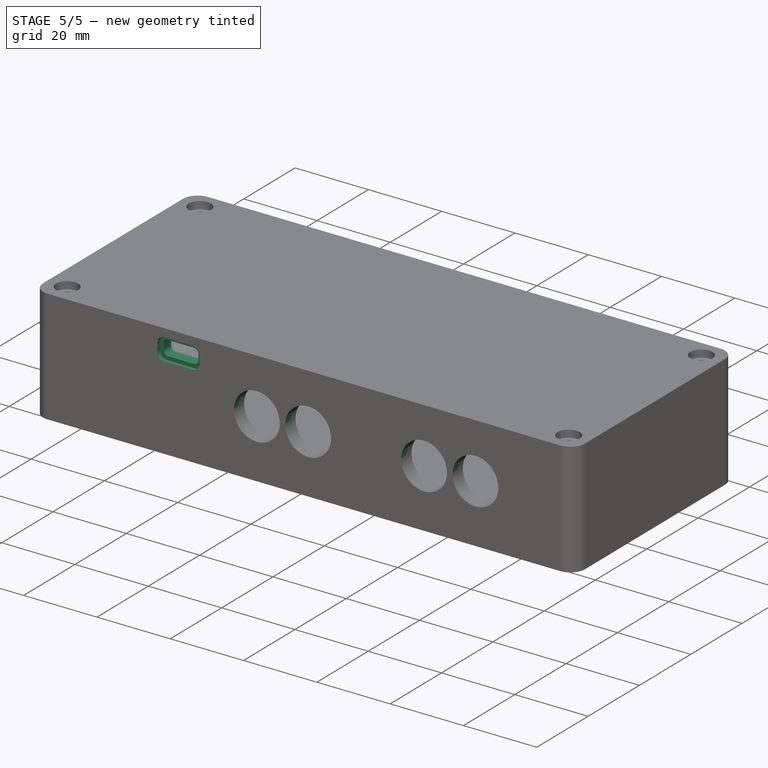
[diagram: stage 5 of 5 — iso view after this stage's code; geometry added in this stage tinted green]
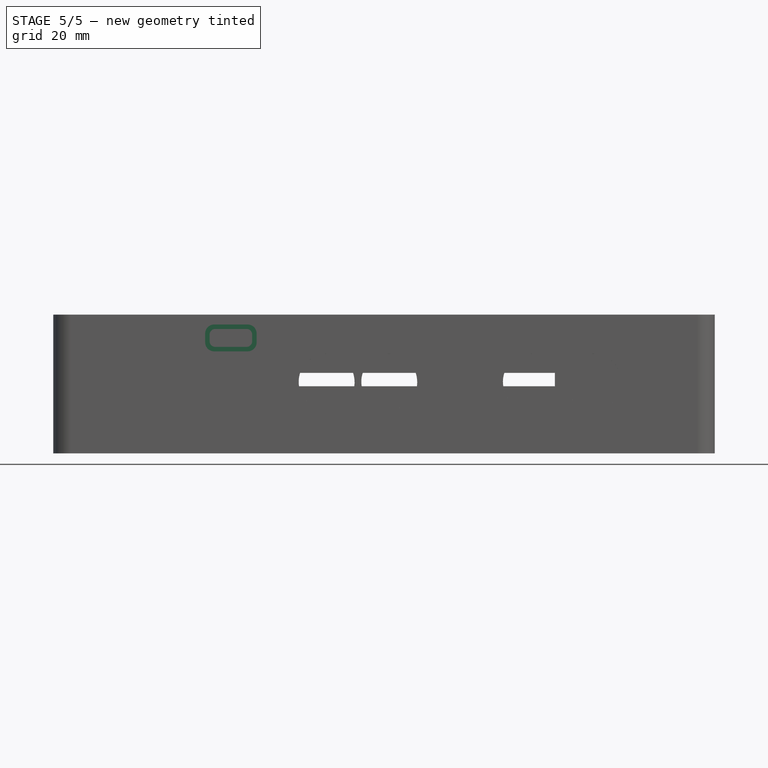
[diagram: stage 5 of 5 — front view after this stage's code; geometry added in this stage tinted green]
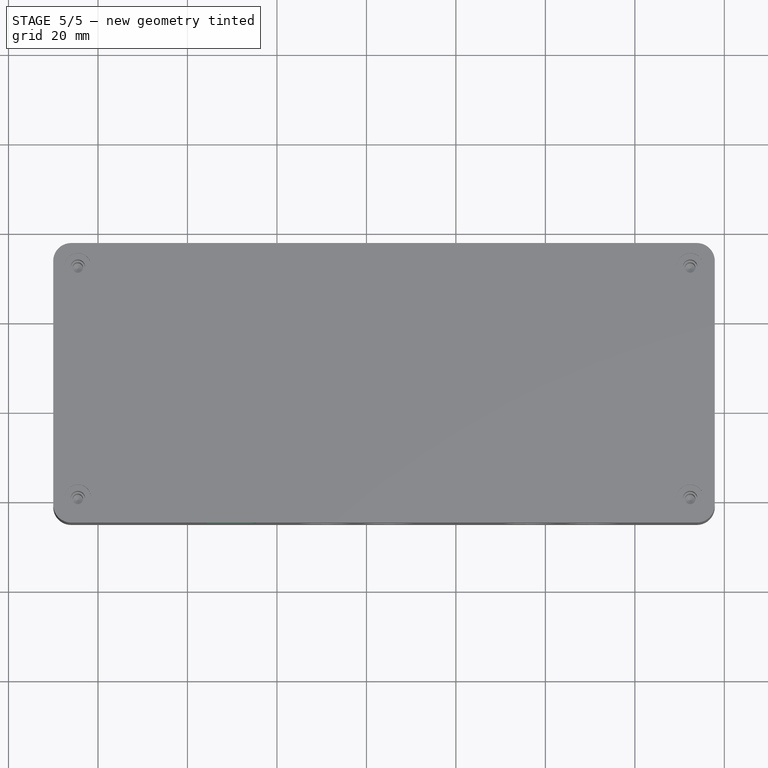
[diagram: stage 5 of 5 — top view after this stage's code; geometry added in this stage tinted green]
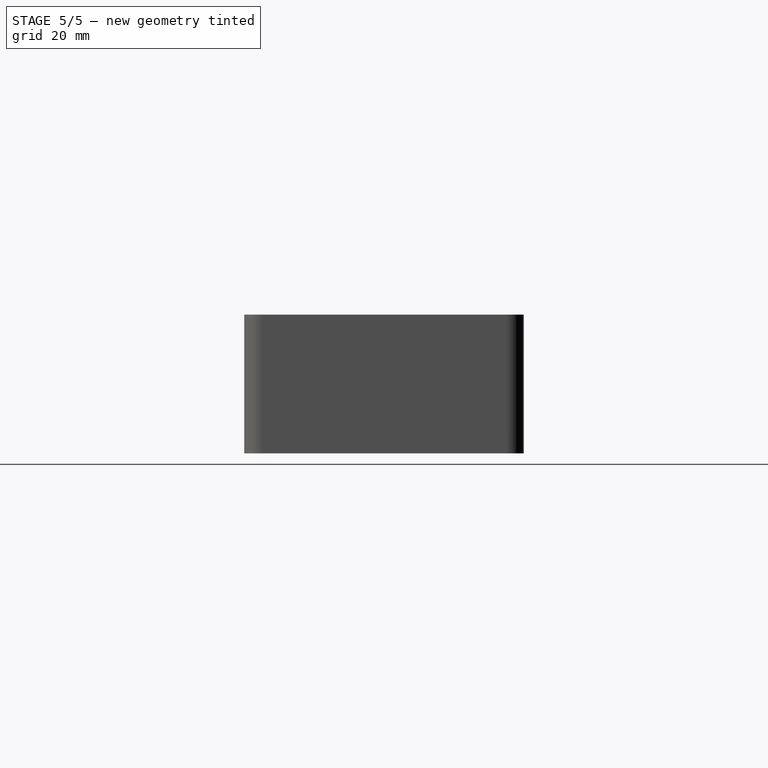
[diagram: stage 5 of 5 — right view after this stage's code; geometry added in this stage tinted green]
FEATURE [Sketcher::SketchObject] Sketch005
  ArcFitTolerance = 1e-06
  AttachmentSupport = -> [Pocket002]
  ExternalGeometry = -> [BaseFeature]
  FullyConstrained = true
  MakeInternals = false
  MapMode = 5
  Placement = pos=(0,0,13) rot=(1,0,0;3.14159rad)
  sketch-geometry (8):
    g0: Circle CenterX=4 CenterY=-4 CenterZ=0 NormalX=0 NormalY=0 NormalZ=1 AngleXU=0 Radius=3
    g1: Circle CenterX=4 CenterY=-49.48 CenterZ=0 NormalX=0 NormalY=0 NormalZ=1 AngleXU=0 Radius=3
    g2: Circle CenterX=123.86 CenterY=-43.82 CenterZ=0 NormalX=0 NormalY=0 NormalZ=1 AngleXU=0 Radius=3
    g3: Circle CenterX=123.86 CenterY=-4 CenterZ=0 NormalX=0 NormalY=0 NormalZ=1 AngleXU=0 Radius=3
    g4: Circle CenterX=123.86 CenterY=-4 CenterZ=0 NormalX=0 NormalY=0 NormalZ=1 AngleXU=0 Radius=1.16
    g5: Circle CenterX=123.86 CenterY=-43.82 CenterZ=0 NormalX=0 NormalY=0 NormalZ=1 AngleXU=0 Radius=1.16
    g6: Circle CenterX=4 CenterY=-49.48 CenterZ=0 NormalX=0 NormalY=0 NormalZ=1 AngleXU=0 Radius=1.16
    g7: Circle CenterX=4 CenterY=-4 CenterZ=0 NormalX=0 NormalY=0 NormalZ=1 AngleXU=0 Radius=1.16
  constraints (16):
    c: Coincident(g0,g-3)
    c: Coincident(g1,g-4)
    c: Coincident(g2,g-5)
    c: Coincident(g3,g-6)
    c: Equal(g0,g1)
    c: Equal(g3,g2)
    c: Equal(g1,g2)
    c: Diameter(g1) = 6
    c: Coincident(g4,g3)
    c: Diameter(g4) = 2.32
    c: Coincident(g5,g2)
    c: Coincident(g6,g1)
    c: Coincident(g7,g0)
    c: Equal(g5,g6)
    c: Equal(g7,g6)
    c: Equal(g7,g4)
FEATURE [PartDesign::Pad] Pad001  label="PCB supports"
  BaseFeature = -> Pocket002
  Direction = (0,0,-1)
  Length = 4.5
  Length2 = 10
  Profile = -> Sketch005
  ReferenceAxis = -> Sketch005 [N_Axis]
  Suppressed = false
  Type = 0
FEATURE [Part::Feature] Part__Feature064  label="pjras2x1s_series002"
  Placement = pos=(104.54,0.16,0.015) rot=(0,0,1;3.14159rad)
  shape: bbox 28.51 x 21.22 x 22.51 mm, 190 faces (baked)
FEATURE [Sketcher::SketchObject] Sketch006
  ArcFitTolerance = 1e-06
  AttachmentSupport = -> [Pad001]
  ExternalGeometry = -> [Pad001]
  FullyConstrained = true
  MakeInternals = false
  MapMode = 5
  Placement = pos=(0,-5,0) rot=(1,0,0;1.5708rad)
  sketch-geometry (17):
    g0: Circle CenterX=96.74 CenterY=0 CenterZ=0 NormalX=0 NormalY=0 NormalZ=1 AngleXU=0 Radius=6.25
    g1: Circle CenterX=110.74 CenterY=0 CenterZ=0 NormalX=0 NormalY=0 NormalZ=1 AngleXU=0 Radius=6.25
    g2: Circle CenterX=65.09 CenterY=0 CenterZ=0 NormalX=0 NormalY=0 NormalZ=1 AngleXU=0 Radius=6.25
    g3: Circle CenterX=51.09 CenterY=0 CenterZ=0 NormalX=0 NormalY=0 NormalZ=1 AngleXU=0 Radius=6.25
    g4: GeomPoint [constr] X=123.86 Y=8.5 Z=0
    g5: LineSegment StartX=24.96 StartY=10.55 StartZ=0 EndX=24.96 EndY=9.05 EndZ=0
    g6: LineSegment StartX=26.21 StartY=7.8 StartZ=0 EndX=33.21 EndY=7.8 EndZ=0
    g7: LineSegment StartX=34.46 StartY=9.05 StartZ=0 EndX=34.46 EndY=10.55 EndZ=0
    g8: LineSegment StartX=33.21 StartY=11.8 StartZ=0 EndX=26.21 EndY=11.8 EndZ=0
    g9: ArcOfCircle CenterX=26.21 CenterY=9.05 CenterZ=0 NormalX=0 NormalY=0 NormalZ=1 AngleXU=0 Radius=1.25 StartAngle=3.14159 EndAngle=4.71239
    g10: GeomPoint [constr] X=24.96 Y=7.8 Z=0
    g11: ArcOfCircle CenterX=33.21 CenterY=9.05 CenterZ=0 NormalX=0 NormalY=0 NormalZ=1 AngleXU=0 Radius=1.25 StartAngle=4.71239 EndAngle=6.28319
    g12: GeomPoint [constr] X=34.46 Y=7.8 Z=0
    g13: ArcOfCircle CenterX=33.21 CenterY=10.55 CenterZ=0 NormalX=0 NormalY=0 NormalZ=1 AngleXU=0 Radius=1.25 StartAngle=3e-16 EndAngle=1.5708
    g14: GeomPoint [constr] X=34.46 Y=11.8 Z=0
    g15: ArcOfCircle CenterX=26.21 CenterY=10.55 CenterZ=0 NormalX=0 NormalY=0 NormalZ=1 AngleXU=0 Radius=1.25 StartAngle=1.5708 EndAngle=3.14159
    g16: GeomPoint [constr] X=24.96 Y=11.8 Z=0
  constraints (41):
    c: Diameter(g0) = 12.5
    c: PointOnObject(g0,g-1)
    c: PointOnObject(g1,g-1)
    c: Equal(g0,g1)
    c: DistanceX(g0,g1) = 14
    c: Equal(g2,g0)
    c: Equal(g0,g3)
    c: Horizontal(g2,g3)
    c: Horizontal(g2,g0)
    c: DistanceX(g3,g2) = 14
    c: DistanceX(g2,g1) = 45.65
    c: Symmetric(g-3,g-3,g4)
    c: DistanceX(g1,g4) = 13.12
    c: Vertical(g5)
    c: Vertical(g7)
    c: Horizontal(g6)
    c: Horizontal(g8)
    c: DistanceX(g10,g12) = 9.5
    c: DistanceY(g12,g14) = 4
    c: PointOnObject(g10,g5)
    c: PointOnObject(g10,g6)
    c: Tangent(g5,g9) = -1.5708
    c: Tangent(g6,g9) = -1.5708
    c: PointOnObject(g12,g6)
    c: PointOnObject(g12,g7)
    c: Tangent(g6,g11) = -1.5708
    c: Tangent(g7,g11) = -1.5708
    c: PointOnObject(g14,g7)
    c: PointOnObject(g14,g8)
    c: Tangent(g7,g13) = -1.5708
    c: Tangent(g8,g13) = -1.5708
    c: PointOnObject(g16,g8)
    c: PointOnObject(g16,g5)
    c: Tangent(g8,g15) = -1.5708
    c: Tangent(g5,g15) = -1.5708
    c: Equal(g15,g9)
    c: Equal(g11,g9)
    c: Equal(g11,g13)
    c: Radius(g15) = 1.25
    c: DistanceX(g7,g4) = 89.4
    c: DistanceY(g-1,g6) = 7.8
FEATURE [PartDesign::Pocket] Pocket003  label="Jack holes"
  BaseFeature = -> Pad001
  Direction = (0,1,-2e-16)
  Length = 4
  Length2 = 5
  Profile = -> Sketch006
  ReferenceAxis = -> Sketch006 [N_Axis]
  Suppressed = false
  Type = 0
FEATURE [Part::Feature] Part__Feature065  label="SOLID002"
  Placement = pos=(29.68,3.28,9.78) rot=(0,0.707107,0.707107;3.14159rad)
  shape: bbox 9.022 x 6.758 x 4.132 mm, 664 faces (baked)
FEATURE [Sketcher::SketchObject] Sketch007
  ArcFitTolerance = 1e-06
  AttachmentSupport = -> [Pocket003]
  ExternalGeometry = -> [Pocket003]
  FullyConstrained = true
  MakeInternals = false
  MapMode = 5
  Placement = pos=(0,-5,0) rot=(1,0,0;1.5708rad)
  sketch-geometry (12):
    g0: LineSegment StartX=23.96 StartY=10.8 StartZ=0 EndX=23.96 EndY=8.8 EndZ=0
    g1: LineSegment StartX=25.96 StartY=6.8 StartZ=0 EndX=33.46 EndY=6.8 EndZ=0
    g2: LineSegment StartX=35.46 StartY=8.8 StartZ=0 EndX=35.46 EndY=10.8 EndZ=0
    g3: LineSegment StartX=33.46 StartY=12.8 StartZ=0 EndX=25.96 EndY=12.8 EndZ=0
    g4: ArcOfCircle CenterX=25.96 CenterY=10.8 CenterZ=0 NormalX=0 NormalY=0 NormalZ=1 AngleXU=0 Radius=2 StartAngle=1.5708 EndAngle=3.14159
    g5: GeomPoint [constr] X=23.96 Y=12.8 Z=0
    g6: ArcOfCircle CenterX=33.46 CenterY=10.8 CenterZ=0 NormalX=0 NormalY=0 NormalZ=1 AngleXU=0 Radius=2 StartAngle=0 EndAngle=1.5708
    g7: GeomPoint [constr] X=35.46 Y=12.8 Z=0
    g8: ArcOfCircle CenterX=33.46 CenterY=8.8 CenterZ=0 NormalX=0 NormalY=0 NormalZ=1 AngleXU=0 Radius=2 StartAngle=4.71239 EndAngle=6.28319
    g9: GeomPoint [constr] X=35.46 Y=6.8 Z=0
    g10: ArcOfCircle CenterX=25.96 CenterY=8.8 CenterZ=0 NormalX=0 NormalY=0 NormalZ=1 AngleXU=0 Radius=2 StartAngle=3.14159 EndAngle=4.71239
    g11: GeomPoint [constr] X=23.96 Y=6.8 Z=0
  constraints (28):
    c: Vertical(g0)
    c: Vertical(g2)
    c: Horizontal(g1)
    c: Horizontal(g3)
    c: DistanceY(g-3,g5) = 1
    c: DistanceX(g5,g-6) = 1
    c: DistanceY(g9,g-4) = 1
    c: DistanceX(g-5,g7) = 1
    c: PointOnObject(g5,g0)
    c: PointOnObject(g5,g3)
    c: Tangent(g0,g4) = -1.5708
    c: Tangent(g3,g4) = -1.5708
    c: PointOnObject(g7,g3)
    c: PointOnObject(g7,g2)
    c: Tangent(g3,g6) = -1.5708
    c: Tangent(g2,g6) = -1.5708
    c: PointOnObject(g9,g2)
    c: PointOnObject(g9,g1)
    c: Tangent(g2,g8) = -1.5708
    c: Tangent(g1,g8) = -1.5708
    c: PointOnObject(g11,g1)
    c: PointOnObject(g11,g0)
    c: Tangent(g1,g10) = -1.5708
    c: Tangent(g0,g10) = -1.5708
    c: Equal(g4,g10)
    c: Equal(g4,g6)
    c: Equal(g6,g8)
    c: Radius(g4) = 2
FEATURE [PartDesign::Pocket] Pocket004  label="USB bore-out"
  BaseFeature = -> Pocket003
  Direction = (0,1,-2e-16)
  Length = 1
  Length2 = 5
  Profile = -> Sketch007
  ReferenceAxis = -> Sketch007 [N_Axis]
  Suppressed = false
  Type = 0
FEATURE [Sketcher::SketchObject] Sketch008
  ArcFitTolerance = 1e-06
  AttachmentSupport = -> [Pocket004]
  FullyConstrained = false
  MakeInternals = false
  MapMode = 5
  Placement = pos=(0,57.48,0) rot=(0,0.707107,0.707107;3.14159rad)
  sketch-geometry (4):
    g0: LineSegment StartX=-34.119 StartY=0 StartZ=0 EndX=-34.119 EndY=2 EndZ=0
    g1: LineSegment StartX=-34.119 StartY=2 StartZ=0 EndX=-102.119 EndY=2 EndZ=0
    g2: LineSegment StartX=-102.119 StartY=2 StartZ=0 EndX=-102.119 EndY=0 EndZ=0
    g3: LineSegment StartX=-102.119 StartY=0 StartZ=0 EndX=-34.119 EndY=0 EndZ=0
  constraints (11):
    c: Coincident(g0,g1)
    c: Coincident(g1,g2)
    c: Coincident(g2,g3)
    c: Coincident(g3,g0)
    c: Vertical(g0)
    c: Vertical(g2)
    c: Horizontal(g1)
    c: Horizontal(g3)
    c: PointOnObject(g0,g-1)
    c: DistanceX(g1,g1) = 68
    c: DistanceY(g2,g2) = 2
FEATURE [PartDesign::Pocket] Pocket005  label="slider cutaway"
  BaseFeature = -> Pocket004
  Direction = (0,-1,2e-16)
  Length = 4
  Length2 = 5
  Profile = -> Sketch008
  ReferenceAxis = -> Sketch008 [N_Axis]
  Suppressed = false
  Type = 0
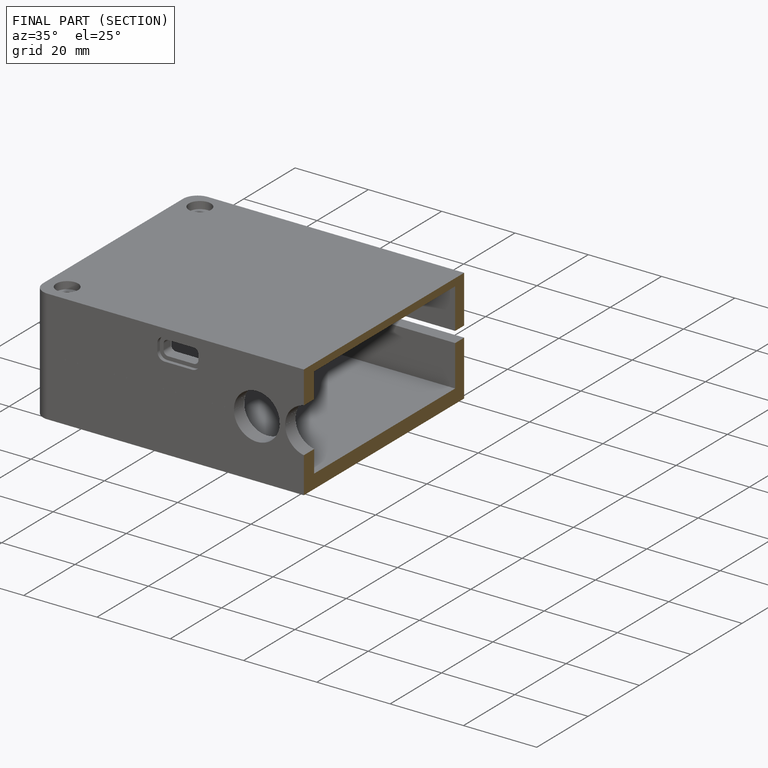
[diagram: finished part — half-section view (interior)]
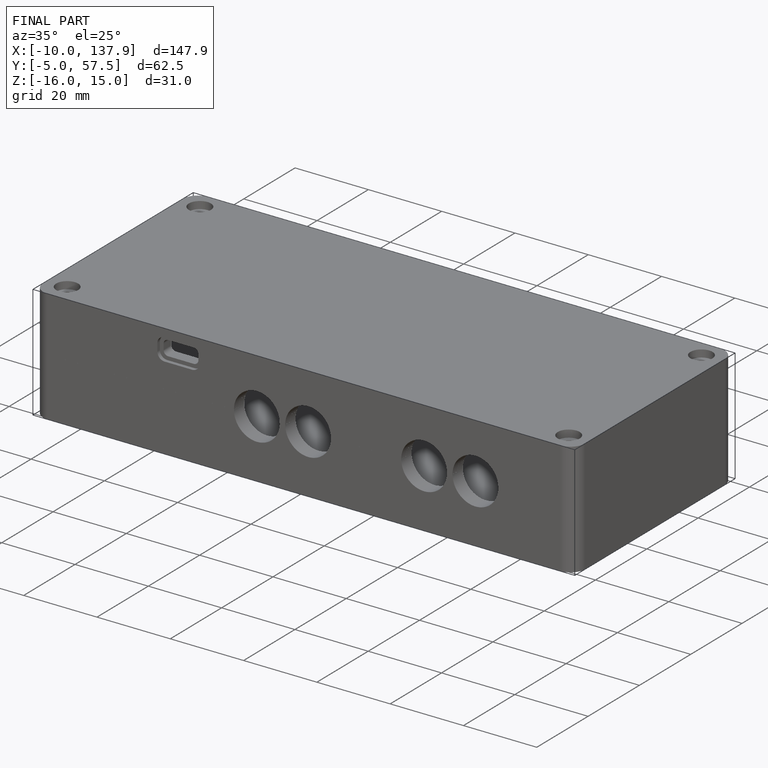
[diagram: finished part — iso view with bounding-box wireframe]
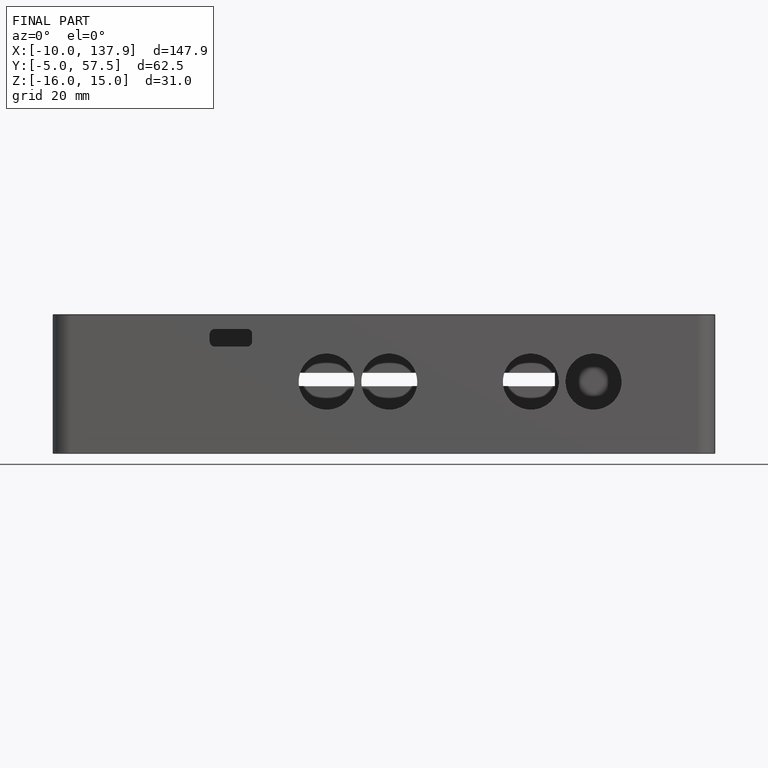
[diagram: finished part — front view with bounding-box wireframe]
